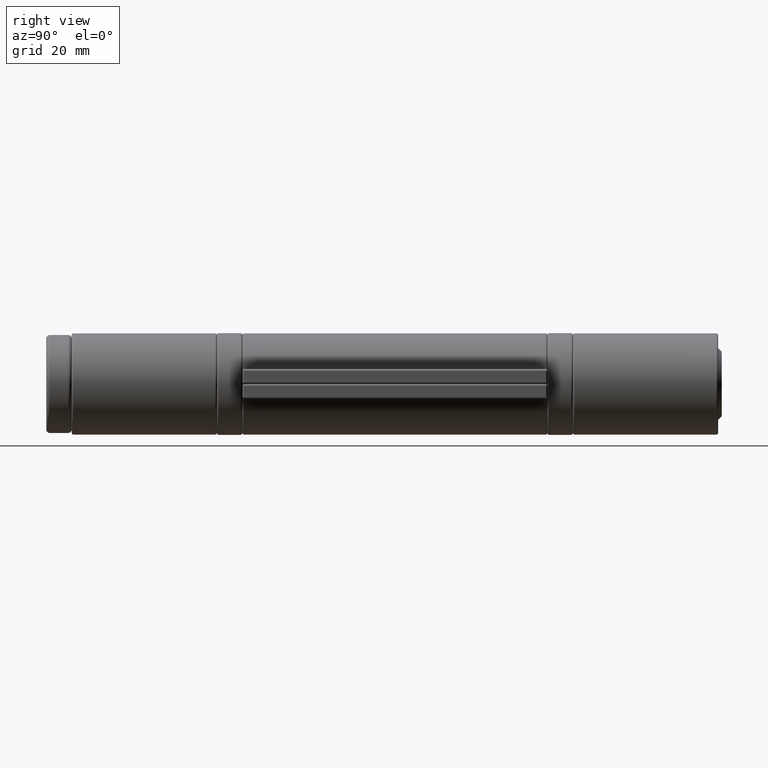
[diagram: clean part render]
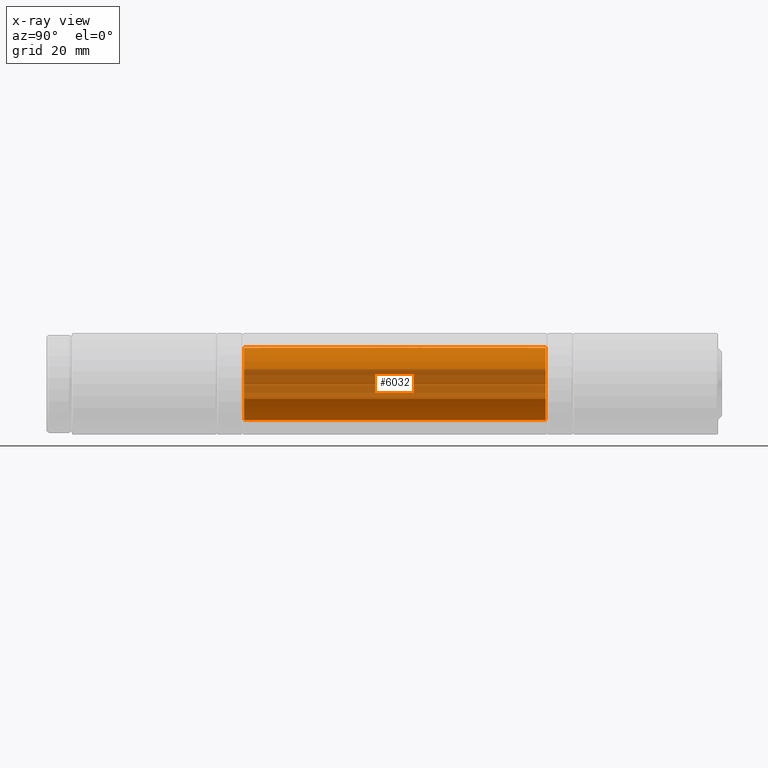
[diagram: x-ray — body ghosted, one internal face saturated and labeled with its STEP entity id]
A machine part, right view, then the same camera in x-ray: the body is ghosted and one INTERNAL B-rep face — a face not visible from any outside direction — is saturated and labeled: STEP entity #6032.
In plain terms, the highlighted cylindrical surface (edge-blend (fillet) strip) has radius 10 mm, axis along (-0, -1, 0).
Its self-contained STEP definition (entity closure, byte-faithful):
#1 = DIRECTION ( 'NONE',  ( -0.000000000000000000, -1.000000000000000000, -0.000000000000000000 ) ) ;
#2 = VERTEX_POINT ( 'NONE', #4110 ) ;
#24 = CARTESIAN_POINT ( 'NONE',  ( -10.00017879517053210, -3.676885605185409744, 0.01012054848694971497 ) ) ;
#31 = CARTESIAN_POINT ( 'NONE',  ( -10.00003449799938160, -1.739398774313377416, -0.03249417169102884057 ) ) ;
#33 = CARTESIAN_POINT ( 'NONE',  ( -9.981511848940638032, 1.806290064102565651, -0.6078003039301713706 ) ) ;
#47 = B_SPLINE_CURVE_WITH_KNOTS ( 'NONE', 3,
 ( #10233, #7881, #1157, #8690, #3654, #7801, #3702, #2854, #217, #9508 ),
 .UNSPECIFIED., .F., .F.,
 ( 4, 2, 2, 2, 4 ),
 ( 5.421010862427522170E-20, 0.0001362450622146915225, 0.0002724901244293829908, 0.0004087351866440744590, 0.0005449802488587658731 ),
 .UNSPECIFIED. ) ;
#51 = ORIENTED_EDGE ( 'NONE', *, *, #10140, .T. ) ;
#54 = CARTESIAN_POINT ( 'NONE',  ( -9.989233463957484460, 6.044227920735250947, -0.4690617702180850945 ) ) ;
#58 = CARTESIAN_POINT ( 'NONE',  ( -9.999258492655036079, -0.7208199786324733793, -0.1217768330434191720 ) ) ;
#83 = CARTESIAN_POINT ( 'NONE',  ( -9.980931036580034998, 5.864235613890856236, -0.6188318537603997305 ) ) ;
#87 = EDGE_LOOP ( 'NONE', ( #2828, #2936, #9191, #6871, #7051, #6047, #5689, #5937, #5407, #10073, #560, #10016, #6768, #9536 ) ) ;
#95 = CARTESIAN_POINT ( 'NONE',  ( -9.996692280932963470, 2.153449686164534249, 0.2571836704288030795 ) ) ;
#105 = CARTESIAN_POINT ( 'NONE',  ( -9.994254505921466247, -4.351594014373431740, -0.3394379128842923699 ) ) ;
#107 = CARTESIAN_POINT ( 'NONE',  ( -9.979388450444718117, 4.452123397435904906, -0.6417212441011114210 ) ) ;
#110 = VERTEX_POINT ( 'NONE', #5949 ) ;
#130 = CARTESIAN_POINT ( 'NONE',  ( -9.992932200142822907, -4.760061932425210252, 0.3759069610270937001 ) ) ;
#150 = CARTESIAN_POINT ( 'NONE',  ( -9.974397655384834138, -6.063368055555552694, 0.7151163627364953701 ) ) ;
#156 = ORIENTED_EDGE ( 'NONE', *, *, #521, .T. ) ;
#166 = CARTESIAN_POINT ( 'NONE',  ( -9.994179189343290304, -2.993342317527983187, 0.3416178935155609331 ) ) ;
#167 = CIRCLE ( 'NONE', #8977, 9.999999999999998224 ) ;
#194 = DIRECTION ( 'NONE',  ( 0.000000000000000000, 1.000000000000000000, -0.000000000000000000 ) ) ;
#200 = CARTESIAN_POINT ( 'NONE',  ( -9.993003653210198678, -0.2793946390732844343, 0.3740074866047469193 ) ) ;
#208 = CARTESIAN_POINT ( 'NONE',  ( 0.000000000000000000, -0.9582665598290573961, 0.000000000000000000 ) ) ;
#211 = EDGE_CURVE ( 'NONE', #8320, #5351, #3815, .T. ) ;
#214 = LINE ( 'NONE', #9169, #4523 ) ;
#215 = VERTEX_POINT ( 'NONE', #150 ) ;
#217 = CARTESIAN_POINT ( 'NONE',  ( -9.980524504992589030, -4.716766140242481420, -0.6238040750922312361 ) ) ;
#221 = VERTEX_POINT ( 'NONE', #5980 ) ;
#227 = CARTESIAN_POINT ( 'NONE',  ( -9.998377373414710334, -1.126622254614402019, 0.1835013057331851827 ) ) ;
#233 = EDGE_CURVE ( 'NONE', #7264, #8825, #9970, .T. ) ;
#252 = CARTESIAN_POINT ( 'NONE',  ( -9.992932200142822907, 1.054729233440165226, 0.3759069610270937001 ) ) ;
#259 = CARTESIAN_POINT ( 'NONE',  ( -9.998608322719395147, 4.129874465811965933, -0.1668280817079491052 ) ) ;
#262 = DIRECTION ( 'NONE',  ( 0.000000000000000000, 0.000000000000000000, 1.000000000000000000 ) ) ;
#267 = CARTESIAN_POINT ( 'NONE',  ( 0.000000000000000000, 1.806290064102565651, 0.000000000000000000 ) ) ;
#281 = CARTESIAN_POINT ( 'NONE',  ( -9.995761475050207068, 1.902848618010950732, 0.2930234998570792060 ) ) ;
#282 = VERTEX_POINT ( 'NONE', #2792 ) ;
#295 = CARTESIAN_POINT ( 'NONE',  ( -9.994543810149369989, -1.464417492200395188, 0.3309634259092265052 ) ) ;
#300 = CARTESIAN_POINT ( 'NONE',  ( -9.998608322719395147, 42.00000000000000000, -0.1668280817079491052 ) ) ;
#317 = VERTEX_POINT ( 'NONE', #3025 ) ;
#322 = CARTESIAN_POINT ( 'NONE',  ( -9.997256934699386477, 1.851281973388160695, 0.2408862776038018239 ) ) ;
#347 = VECTOR ( 'NONE', #9008, 1000.000000000000000 ) ;
#357 = CARTESIAN_POINT ( 'NONE',  ( -9.980598164372926462, 4.417943437150907648, -0.6229090178977401138 ) ) ;
#363 = EDGE_CURVE ( 'NONE', #9239, #5090, #10510, .T. ) ;
#365 = CARTESIAN_POINT ( 'NONE',  ( -9.998985555104400902, -1.640130458733972896, 0.1424354900067944796 ) ) ;
#366 = AXIS2_PLACEMENT_3D ( 'NONE', #6177, #1170, #7021 ) ;
#377 = EDGE_CURVE ( 'NONE', #9602, #8594, #7527, .T. ) ;
#381 = CARTESIAN_POINT ( 'NONE',  ( -9.997681416466239313, -2.262304910942161573, 0.2168876295397734189 ) ) ;
#404 = CARTESIAN_POINT ( 'NONE',  ( -9.994656025692643553, -2.147089509882476932, 0.3268806021862817324 ) ) ;
#412 = ORIENTED_EDGE ( 'NONE', *, *, #4703, .T. ) ;
#424 = VERTEX_POINT ( 'NONE', #3219 ) ;
#427 = CARTESIAN_POINT ( 'NONE',  ( -9.981511848940636256, 42.00000000000000000, -0.6078003039301713706 ) ) ;
#429 = CARTESIAN_POINT ( 'NONE',  ( -9.992932200142822907, -0.2130659054487126780, 0.3759069610270937001 ) ) ;
#432 = CARTESIAN_POINT ( 'NONE',  ( -9.982857985037227877, 4.349565554887828256, -0.5852746795979063554 ) ) ;
#442 = CARTESIAN_POINT ( 'NONE',  ( 0.000000000000000000, 0.6868990384615303313, 0.000000000000000000 ) ) ;
#452 = DIRECTION ( 'NONE',  ( 0.000000000000000000, 0.000000000000000000, 1.000000000000000000 ) ) ;
#468 = ORIENTED_EDGE ( 'NONE', *, *, #6806, .T. ) ;
#472 = VERTEX_POINT ( 'NONE', #9001 ) ;
#478 = CARTESIAN_POINT ( 'NONE',  ( -9.998193496045628237, 3.712794061217326469, 0.3990953706076176832 ) ) ;
#480 = ORIENTED_EDGE ( 'NONE', *, *, #10418, .T. ) ;
#491 = ORIENTED_EDGE ( 'NONE', *, *, #1823, .T. ) ;
#493 = DIRECTION ( 'NONE',  ( -0.000000000000000000, -1.000000000000000000, -0.000000000000000000 ) ) ;
#505 = VERTEX_POINT ( 'NONE', #33 ) ;
#519 = FACE_BOUND ( 'NONE', #5199, .T. ) ;
#521 = EDGE_CURVE ( 'NONE', #8725, #2, #1354, .T. ) ;
#531 = VECTOR ( 'NONE', #6582, 1000.000000000000000 ) ;
#536 = CARTESIAN_POINT ( 'NONE',  ( 0.000000000000000000, 2.535590277777784340, 0.000000000000000000 ) ) ;
#543 = CIRCLE ( 'NONE', #8718, 9.999999999999998224 ) ;
#547 = CARTESIAN_POINT ( 'NONE',  ( -9.998518223330519206, -1.651932352990175490, 0.1752422269814331857 ) ) ;
#554 = DIRECTION ( 'NONE',  ( 0.000000000000000000, 0.000000000000000000, -1.000000000000000000 ) ) ;
#560 = ORIENTED_EDGE ( 'NONE', *, *, #7154, .T. ) ;
#574 = ORIENTED_EDGE ( 'NONE', *, *, #7127, .T. ) ;
#587 = CARTESIAN_POINT ( 'NONE',  ( 0.000000000000000000, -5.418870192307689848, 0.000000000000000000 ) ) ;
#600 =( BOUNDED_CURVE ( )  B_SPLINE_CURVE ( 3, ( #10770, #3233, #3344, #3307 ),
 .UNSPECIFIED., .F., .F. ) 
 B_SPLINE_CURVE_WITH_KNOTS ( ( 4, 4 ),
 ( 4.640816252691254640, 4.776605230741187924 ),
 .UNSPECIFIED. ) 
 CURVE ( )  GEOMETRIC_REPRESENTATION_ITEM ( )  RATIONAL_B_SPLINE_CURVE ( ( 1.000000000000000000, 0.9984640362787817747, 0.9984640362787817747, 1.000000000000000000 ) ) 
 REPRESENTATION_ITEM ( '' )  );
#609 = VERTEX_POINT ( 'NONE', #9190 ) ;
#610 = CARTESIAN_POINT ( 'NONE',  ( -9.998276895379850870, -4.370766142494654893, 0.1856316872557260689 ) ) ;
#619 = CARTESIAN_POINT ( 'NONE',  ( -9.999995647783988417, 0.7156953793911673412, 0.03727209593709612107 ) ) ;
#636 = CARTESIAN_POINT ( 'NONE',  ( 0.000000000000000000, 1.687566773504276085, 0.000000000000000000 ) ) ;
#639 = CARTESIAN_POINT ( 'NONE',  ( -9.980464617203514521, -3.184858273237174853, -0.6247607740156414513 ) ) ;
#646 = CARTESIAN_POINT ( 'NONE',  ( -9.998876921884102487, -4.265558226495723027, -0.1498676116224789967 ) ) ;
#670 = ORIENTED_EDGE ( 'NONE', *, *, #10500, .T. ) ;
#676 = CARTESIAN_POINT ( 'NONE',  ( -9.980577309172113942, -3.251162019266608194, -0.6229605358252451319 ) ) ;
#675 = CIRCLE ( 'NONE', #4455, 9.999999999999998224 ) ;
#682 = CARTESIAN_POINT ( 'NONE',  ( -9.997979463874441919, -2.281183226495724803, -0.2010140292239747106 ) ) ;
#683 = CARTESIAN_POINT ( 'NONE',  ( -9.992932200142822907, 2.174120259081201212, 0.3759069610270937556 ) ) ;
#700 = CARTESIAN_POINT ( 'NONE',  ( -9.993511629923556683, 1.168957630243702583, 0.3602317416694748586 ) ) ;
#707 = CARTESIAN_POINT ( 'NONE',  ( -9.981511848940636256, 0.1780849358974411489, -0.6078003039301713706 ) ) ;
#718 = DIRECTION ( 'NONE',  ( 0.000000000000000000, 0.000000000000000000, -1.000000000000000000 ) ) ;
#722 = CARTESIAN_POINT ( 'NONE',  ( -9.981511848940636256, 42.00000000000000000, -0.6078003039301713706 ) ) ;
#734 = VERTEX_POINT ( 'NONE', #8544 ) ;
#737 = VERTEX_POINT ( 'NONE', #2629 ) ;
#741 = CARTESIAN_POINT ( 'NONE',  ( -9.979741922324324221, 5.631194691404474817, -0.6363003676269848308 ) ) ;
#742 = CARTESIAN_POINT ( 'NONE',  ( -9.995423281943226712, -4.421912560096150635, -0.3025118423917097510 ) ) ;
#751 = CARTESIAN_POINT ( 'NONE',  ( -9.971907697068454368, 42.00000000000000000, 0.7490373029074356426 ) ) ;
#753 = CARTESIAN_POINT ( 'NONE',  ( -9.989046062457259012, -2.815023298611194935, -0.4687809335950228751 ) ) ;
#808 = CARTESIAN_POINT ( 'NONE',  ( -9.999176590224481131, 1.809182142495431522, -0.1283258255637936551 ) ) ;
#821 = B_SPLINE_CURVE_WITH_KNOTS ( 'NONE', 3,
 ( #683, #9777, #10667, #7302, #9850, #6515, #9059, #3167, #4091, #9737, #1545, #4753 ),
 .UNSPECIFIED., .F., .F.,
 ( 4, 2, 2, 2, 2, 4 ),
 ( 4.370558682921689079E-19, 8.642851768473444227E-05, 0.0001728570353694684509, 0.0003457140707389364138, 0.0005185711061084042955, 0.0006914281414778723940 ),
 .UNSPECIFIED. ) ;
#832 = CARTESIAN_POINT ( 'NONE',  ( -9.971957107711620694, 5.669364835022810745, 0.7483795007246054620 ) ) ;
#842 = CARTESIAN_POINT ( 'NONE',  ( -9.994519493577504576, -4.442039340381404244, -0.3323743006721192605 ) ) ;
#855 = EDGE_CURVE ( 'NONE', #10065, #9692, #6445, .T. ) ;
#876 = CARTESIAN_POINT ( 'NONE',  ( -9.993488584095391758, -4.462965058061172385, -0.3617765578044325192 ) ) ;
#894 = CARTESIAN_POINT ( 'NONE',  ( -9.995118334130840054, -1.083962266419152609, 0.3134604813038311955 ) ) ;
#897 = LINE ( 'NONE', #6616, #2986 ) ;
#900 = AXIS2_PLACEMENT_3D ( 'NONE', #903, #9224, #2543 ) ;
#903 = CARTESIAN_POINT ( 'NONE',  ( 0.000000000000000000, -4.045072115384622080, 0.000000000000000000 ) ) ;
#915 = CARTESIAN_POINT ( 'NONE',  ( -9.998447609803342573, -0.7190223255688993342, -0.1883595075851558498 ) ) ;
#932 = ORIENTED_EDGE ( 'NONE', *, *, #377, .T. ) ;
#946 = CARTESIAN_POINT ( 'NONE',  ( -9.998564585233726376, 2.358106918021161569, 0.1712238246765657168 ) ) ;
#950 = CARTESIAN_POINT ( 'NONE',  ( -9.994864473019212880, -4.386751745463262964, -0.3209756872617426926 ) ) ;
#961 = CARTESIAN_POINT ( 'NONE',  ( 0.000000000000000000, -1.738448183760683774, 0.000000000000000000 ) ) ;
#971 = CARTESIAN_POINT ( 'NONE',  ( -9.997866492956648088, 1.976116121605438813, 0.2078629987359535969 ) ) ;
#975 = ORIENTED_EDGE ( 'NONE', *, *, #2175, .T. ) ;
#982 = VERTEX_POINT ( 'NONE', #3880 ) ;
#991 = ORIENTED_EDGE ( 'NONE', *, *, #3377, .T. ) ;
#996 = CARTESIAN_POINT ( 'NONE',  ( -9.999999929601976589, 1.824575570913465450, 0.001186575076238933178 ) ) ;
#1003 = CARTESIAN_POINT ( 'NONE',  ( -9.997157956499977516, -5.122107841556651664, -0.2423294997685455088 ) ) ;
#1012 = VERTEX_POINT ( 'NONE', #10549 ) ;
#1013 = DIRECTION ( 'NONE',  ( -0.000000000000000000, -1.000000000000000000, -0.000000000000000000 ) ) ;
#1014 = VERTEX_POINT ( 'NONE', #5561 ) ;
#1019 = CARTESIAN_POINT ( 'NONE',  ( -9.981202975655966370, -0.3490478602623065529, -0.6133709801601394673 ) ) ;
#1041 = DIRECTION ( 'NONE',  ( 0.000000000000000000, 1.000000000000000000, -0.000000000000000000 ) ) ;
#1051 = DIRECTION ( 'NONE',  ( -0.000000000000000000, -1.000000000000000000, -0.000000000000000000 ) ) ;
#1075 = CARTESIAN_POINT ( 'NONE',  ( -9.998876921884102487, -5.130542200854697477, -0.1498676116224789967 ) ) ;
#1084 = VERTEX_POINT ( 'NONE', #7108 ) ;
#1085 = CARTESIAN_POINT ( 'NONE',  ( -9.992976197993835186, 1.018515935852698284, 0.3747373430426035879 ) ) ;
#1095 = DIRECTION ( 'NONE',  ( 0.000000000000000000, 0.000000000000000000, -1.000000000000000000 ) ) ;
#1097 = B_SPLINE_CURVE_WITH_KNOTS ( 'NONE', 3,
 ( #8114, #8893, #2220, #7271, #8149, #10466, #5457, #4690, #547, #1408 ),
 .UNSPECIFIED., .F., .F.,
 ( 4, 2, 2, 2, 4 ),
 ( 2.235140038340936256E-19, 0.0001032803669226507921, 0.0002065607338453013674, 0.0003098411007679519697, 0.0004131214676906024095 ),
 .UNSPECIFIED. ) ;
#1102 = CARTESIAN_POINT ( 'NONE',  ( -10.00007509016583995, -1.078034503358187290, -0.004963770753725411239 ) ) ;
#1103 = DIRECTION ( 'NONE',  ( 0.000000000000000000, 1.000000000000000000, -0.000000000000000000 ) ) ;
#1106 = VERTEX_POINT ( 'NONE', #1285 ) ;
#1108 = CARTESIAN_POINT ( 'NONE',  ( -9.994672497035532288, -5.088400649077654769, -0.3292604906003706589 ) ) ;
#1124 = DIRECTION ( 'NONE',  ( 0.000000000000000000, 0.000000000000000000, -1.000000000000000000 ) ) ;
#1137 = EDGE_LOOP ( 'NONE', ( #9711, #3779, #9730, #9127, #4231, #5010 ) ) ;
#1142 = CARTESIAN_POINT ( 'NONE',  ( -9.971907697068454368, -2.671274038461533884, 0.7490373029074356426 ) ) ;
#1149 = VECTOR ( 'NONE', #5059, 1000.000000000000000 ) ;
#1155 = CARTESIAN_POINT ( 'NONE',  ( -9.999776160817633652, 2.402821597889961414, 0.06690839665743548992 ) ) ;
#1157 = CARTESIAN_POINT ( 'NONE',  ( -9.990535035812227349, -4.363314185664604494, -0.4363089613609142936 ) ) ;
#1165 = B_SPLINE_CURVE_WITH_KNOTS ( 'NONE', 3,
 ( #3797, #10468, #3831, #7191, #4692, #6306, #10528, #9708, #4758, #10674 ),
 .UNSPECIFIED., .F., .F.,
 ( 4, 2, 2, 2, 4 ),
 ( 0.000000000000000000, 0.0002330308274612723088, 0.0004660616549225446176, 0.0006990924823838169265, 0.0009321233098450892353 ),
 .UNSPECIFIED. ) ;
#1169 = CARTESIAN_POINT ( 'NONE',  ( -9.987188096024654627, -4.777817424545936831, -0.5060374834173508862 ) ) ;
#1170 = DIRECTION ( 'NONE',  ( 0.000000000000000000, 1.000000000000000000, -0.000000000000000000 ) ) ;
#1172 = CARTESIAN_POINT ( 'NONE',  ( -9.997979463874441919, -2.281183226495724803, -0.2010140292239747106 ) ) ;
#1180 = CARTESIAN_POINT ( 'NONE',  ( -9.998378670749076491, 0.1780849358974411489, 0.1800665330089312455 ) ) ;
#1187 = VERTEX_POINT ( 'NONE', #9967 ) ;
#1189 = CARTESIAN_POINT ( 'NONE',  ( -9.993151885451055705, -1.360565019761942995, 0.3701935223844826095 ) ) ;
#1198 = VECTOR ( 'NONE', #9462, 1000.000000000000000 ) ;
#1218 = CARTESIAN_POINT ( 'NONE',  ( -9.993555794442768203, 42.00000000000000000, 0.3589464909416235638 ) ) ;
#1222 = ORIENTED_EDGE ( 'NONE', *, *, #2444, .T. ) ;
#1227 = CARTESIAN_POINT ( 'NONE',  ( -9.993989924528241531, -4.938561712262051984, 0.3469887270777736177 ) ) ;
#1237 = LINE ( 'NONE', #3985, #5274 ) ;
#1240 = CARTESIAN_POINT ( 'NONE',  ( -9.998276895379850870, -4.370766142494654893, 0.1856316872557260689 ) ) ;
#1255 = DIRECTION ( 'NONE',  ( 0.000000000000000000, 0.000000000000000000, -1.000000000000000000 ) ) ;
#1263 = CARTESIAN_POINT ( 'NONE',  ( -9.981511848940636256, 42.00000000000000000, -0.6078003039301713706 ) ) ;
#1265 = ORIENTED_EDGE ( 'NONE', *, *, #2037, .T. ) ;
#1281 = DIRECTION ( 'NONE',  ( 0.000000000000000000, 1.000000000000000000, -0.000000000000000000 ) ) ;
#1285 = CARTESIAN_POINT ( 'NONE',  ( -9.998828751488698430, 2.416866987179487669, -0.1530476997635046299 ) ) ;
#1290 = CARTESIAN_POINT ( 'NONE',  ( -9.998982140267951735, -2.199838539395620352, 0.1498133742472343710 ) ) ;
#1301 = B_SPLINE_CURVE_WITH_KNOTS ( 'NONE', 3,
 ( #58, #2691, #5993, #5895, #6850, #1838, #7718, #9251, #200, #2656 ),
 .UNSPECIFIED., .F., .F.,
 ( 4, 2, 2, 2, 4 ),
 ( 0.000000000000000000, 0.0001964622177439625671, 0.0003929244354879251342, 0.0005893866532318877555, 0.0007858488709758502683 ),
 .UNSPECIFIED. ) ;
#1302 = LINE ( 'NONE', #3006, #9407 ) ;
#1308 = DIRECTION ( 'NONE',  ( 0.000000000000000000, 1.000000000000000000, -0.000000000000000000 ) ) ;
#1323 = CARTESIAN_POINT ( 'NONE',  ( -10.00571990627973484, 4.747715906813684050, 0.1914100947980658107 ) ) ;
#1324 = AXIS2_PLACEMENT_3D ( 'NONE', #9065, #4099, #3937 ) ;
#1351 = ORIENTED_EDGE ( 'NONE', *, *, #1824, .T. ) ;
#1354 = B_SPLINE_CURVE_WITH_KNOTS ( 'NONE', 3,
 ( #9098, #5827, #3254, #2546, #4100, #5862, #808, #6641, #9066, #3295 ),
 .UNSPECIFIED., .F., .F.,
 ( 4, 3, 3, 4 ),
 ( 0.000000000000000000, 6.532046482510732389E-05, 0.0001305005275378708367, 0.0002603763871816536430 ),
 .UNSPECIFIED. ) ;
#1359 = DIRECTION ( 'NONE',  ( -0.000000000000000000, -1.000000000000000000, -0.000000000000000000 ) ) ;
#1364 = VERTEX_POINT ( 'NONE', #9227 ) ;
#1366 = DIRECTION ( 'NONE',  ( 0.000000000000000000, 0.000000000000000000, -1.000000000000000000 ) ) ;
#1369 = CARTESIAN_POINT ( 'NONE',  ( -9.996692280932963470, -1.968474559294870474, 0.2571836704288030795 ) ) ;
#1375 = DIRECTION ( 'NONE',  ( 0.000000000000000000, 1.000000000000000000, -0.000000000000000000 ) ) ;
#1377 = CARTESIAN_POINT ( 'NONE',  ( -9.996710175564507139, 0.9965940545288543007, 0.2564881086744179028 ) ) ;
#1382 = ORIENTED_EDGE ( 'NONE', *, *, #9340, .T. ) ;
#1393 = DIRECTION ( 'NONE',  ( 0.000000000000000000, 1.000000000000000000, -0.000000000000000000 ) ) ;
#1395 = CARTESIAN_POINT ( 'NONE',  ( -4.147058823529411242, -41.49999999999997158, 9.099555105288764878 ) ) ;
#1401 = CARTESIAN_POINT ( 'NONE',  ( -9.998270890665420296, -2.161991717423770165, 0.1878994943978961885 ) ) ;
#1403 = EDGE_CURVE ( 'NONE', #1837, #5490, #5920, .T. ) ;
#1408 = CARTESIAN_POINT ( 'NONE',  ( -9.998985555104400902, -1.640130458733972896, 0.1424354900067944796 ) ) ;
#1416 = CARTESIAN_POINT ( 'NONE',  ( -9.999148547429120626, 0.7722507189222643786, 0.1341379768189265298 ) ) ;
#1423 = CARTESIAN_POINT ( 'NONE',  ( -9.985946850571782107, 5.426026439518962796, -0.5317321068464671008 ) ) ;
#1442 = AXIS2_PLACEMENT_3D ( 'NONE', #6984, #3625, #262 ) ;
#1465 = LINE ( 'NONE', #9592, #1198 ) ;
#1478 = EDGE_LOOP ( 'NONE', ( #3444, #51, #7430, #7567 ) ) ;
#1480 = CARTESIAN_POINT ( 'NONE',  ( -9.996664645616911926, 0.6868990384615327738, -0.2582556157624362747 ) ) ;
#1490 = EDGE_CURVE ( 'NONE', #9116, #2226, #2803, .T. ) ;
#1500 = AXIS2_PLACEMENT_3D ( 'NONE', #6646, #7391, #5831 ) ;
#1520 = CARTESIAN_POINT ( 'NONE',  ( -9.992932200142822907, -1.285550631009614087, 0.3759069610270937001 ) ) ;
#1521 = DIRECTION ( 'NONE',  ( -0.000000000000000000, -1.000000000000000000, -0.000000000000000000 ) ) ;
#1532 = CIRCLE ( 'NONE', #2107, 9.999999999999998224 ) ;
#1545 = CARTESIAN_POINT ( 'NONE',  ( -10.00001114089158705, 2.535419353919514229, -0.05607124368817202609 ) ) ;
#1551 = EDGE_CURVE ( 'NONE', #6724, #7669, #4729, .T. ) ;
#1558 = FACE_BOUND ( 'NONE', #6436, .T. ) ;
#1559 = VERTEX_POINT ( 'NONE', #8440 ) ;
#1562 = AXIS2_PLACEMENT_3D ( 'NONE', #7031, #1281, #7104 ) ;
#1587 = LINE ( 'NONE', #2304, #2655 ) ;
#1594 = DIRECTION ( 'NONE',  ( -0.000000000000000000, -1.000000000000000000, -0.000000000000000000 ) ) ;
#1604 = CARTESIAN_POINT ( 'NONE',  ( -9.999485163148301936, 1.397204065064599376, 0.1165723696540568316 ) ) ;
#1615 = VERTEX_POINT ( 'NONE', #6786 ) ;
#1630 = CARTESIAN_POINT ( 'NONE',  ( -9.996714160736781096, 2.182135839134875965, 0.2563332056012692650 ) ) ;
#1640 = CARTESIAN_POINT ( 'NONE',  ( -9.992932200142822907, 1.054729233440165226, 0.3759069610270937001 ) ) ;
#1647 = B_SPLINE_CURVE_WITH_KNOTS ( 'NONE', 3,
 ( #6679, #8297, #8201, #1694, #6176, #4789, #10827, #5939, #4926, #3465 ),
 .UNSPECIFIED., .F., .F.,
 ( 4, 2, 2, 2, 4 ),
 ( 0.000000000000000000, 8.512567794491814911E-05, 0.0001702513558898362982, 0.0002553770338347545422, 0.0003405027117796727591 ),
 .UNSPECIFIED. ) ;
#1655 = CARTESIAN_POINT ( 'NONE',  ( -9.999645968033981092, -0.9582665598290585063, -0.08414579004128237838 ) ) ;
#1694 = CARTESIAN_POINT ( 'NONE',  ( -9.998564585233726376, 1.238715892380125361, 0.1712238246765658001 ) ) ;
#1698 = EDGE_CURVE ( 'NONE', #3278, #472, #9813, .T. ) ;
#1701 = ORIENTED_EDGE ( 'NONE', *, *, #2631, .T. ) ;
#1711 = CARTESIAN_POINT ( 'NONE',  ( -9.997948511011440331, -1.810994298281929815, 0.2037470426886727470 ) ) ;
#1713 = VERTEX_POINT ( 'NONE', #3787 ) ;
#1716 = VERTEX_POINT ( 'NONE', #1395 ) ;
#1727 = VECTOR ( 'NONE', #1521, 1000.000000000000000 ) ;
#1733 = DIRECTION ( 'NONE',  ( 0.000000000000000000, 1.000000000000000000, 0.000000000000000000 ) ) ;
#1738 = CARTESIAN_POINT ( 'NONE',  ( -9.971907697068454368, 42.00000000000000000, 0.7490373029074356426 ) ) ;
#1786 = CARTESIAN_POINT ( 'NONE',  ( -9.993555794442768203, -2.281183226495724803, 0.3589464909416235638 ) ) ;
#1787 = CARTESIAN_POINT ( 'NONE',  ( -9.980577309172112166, -0.2830797543093407365, -0.6229605358252455760 ) ) ;
#1789 = B_SPLINE_CURVE_WITH_KNOTS ( 'NONE', 3,
 ( #7745, #7014, #1975, #7708, #4363, #4391, #5286, #5214, #3593, #6086 ),
 .UNSPECIFIED., .F., .F.,
 ( 4, 2, 2, 2, 4 ),
 ( 0.000000000000000000, 0.0001922688592608313746, 0.0003845377185216627492, 0.0005768065777824941780, 0.0007690754370433254983 ),
 .UNSPECIFIED. ) ;
#1795 = CARTESIAN_POINT ( 'NONE',  ( -9.992932200142822907, 2.174120259081201212, 0.3759069610270937556 ) ) ;
#1796 = CARTESIAN_POINT ( 'NONE',  ( -9.979388450444707459, 5.708523220486114269, -0.6417212441011114210 ) ) ;
#1797 = CARTESIAN_POINT ( 'NONE',  ( -9.992975023162939507, -3.142722285076598343, 0.3747685741894853373 ) ) ;
#1801 = VERTEX_POINT ( 'NONE', #3958 ) ;
#1807 = CARTESIAN_POINT ( 'NONE',  ( 0.000000000000000000, -2.789997329059823450, 0.000000000000000000 ) ) ;
#1817 = CARTESIAN_POINT ( 'NONE',  ( -9.999776160817633652, 2.402821597889961414, 0.06690839665743548992 ) ) ;
#1823 = EDGE_CURVE ( 'NONE', #734, #1106, #7781, .T. ) ;
#1824 = EDGE_CURVE ( 'NONE', #10796, #7260, #6840, .T. ) ;
#1833 = CARTESIAN_POINT ( 'NONE',  ( -9.999995647783979535, 1.835086405032203549, 0.03727209593709569085 ) ) ;
#1835 = VERTEX_POINT ( 'NONE', #8250 ) ;
#1837 = VERTEX_POINT ( 'NONE', #5740 ) ;
#1838 = CARTESIAN_POINT ( 'NONE',  ( -9.996255424074528051, -0.5228694495008567866, 0.2774653814935654772 ) ) ;
#1843 = CARTESIAN_POINT ( 'NONE',  ( -9.998382411655658331, -3.585576318892964132, 0.1856305243261432147 ) ) ;
#1845 = EDGE_CURVE ( 'NONE', #7669, #10796, #4112, .T. ) ;
#1871 = CARTESIAN_POINT ( 'NONE',  ( -9.998725568628378468, 1.917447548726943118, 0.1613333210649580685 ) ) ;
#1879 = CARTESIAN_POINT ( 'NONE',  ( -9.998177085584412538, -2.281183226495723915, 0.1909318341574354760 ) ) ;
#1880 = CARTESIAN_POINT ( 'NONE',  ( -9.995055158906376747, -3.434969940748386907, 0.3153887830029404316 ) ) ;
#1890 = EDGE_CURVE ( 'NONE', #8594, #2692, #4254, .T. ) ;
#1902 = DIRECTION ( 'NONE',  ( -0.000000000000000000, -1.000000000000000000, -0.000000000000000000 ) ) ;
#1908 = AXIS2_PLACEMENT_3D ( 'NONE', #536, #10412, #1366 ) ;
#1911 = EDGE_CURVE ( 'NONE', #424, #8725, #9872, .T. ) ;
#1922 = CARTESIAN_POINT ( 'NONE',  ( -9.981754678986124674, 4.383757398521719750, -0.6040934462491174273 ) ) ;
#1956 = CARTESIAN_POINT ( 'NONE',  ( -9.993003653210193349, -3.247476904030550671, 0.3740074866047469748 ) ) ;
#1966 = VERTEX_POINT ( 'NONE', #1795 ) ;
#1973 = CARTESIAN_POINT ( 'NONE',  ( -9.999932664230296808, -5.944644764957264016, 0.03669755931769191210 ) ) ;
#1975 = CARTESIAN_POINT ( 'NONE',  ( -9.981052885043476763, -4.891699352365178832, -0.6157359138904143769 ) ) ;
#1982 = CARTESIAN_POINT ( 'NONE',  ( -9.997447190170246856, -1.439008063603716359, 0.2264116227362135414 ) ) ;
#2000 = DIRECTION ( 'NONE',  ( 0.000000000000000000, 1.000000000000000000, 0.000000000000000000 ) ) ;
#2020 = CARTESIAN_POINT ( 'NONE',  ( -9.998373688523795266, -1.508365065657574444, 0.1826848577385426498 ) ) ;
#2022 = CARTESIAN_POINT ( 'NONE',  ( 0.000000000000000000, 0.1780849358974379015, 0.000000000000000000 ) ) ;
#2025 = ORIENTED_EDGE ( 'NONE', *, *, #8094, .T. ) ;
#2037 = EDGE_CURVE ( 'NONE', #2988, #5468, #9433, .T. ) ;
#2051 = VERTEX_POINT ( 'NONE', #1169 ) ;
#2065 = CARTESIAN_POINT ( 'NONE',  ( -9.981511848940638032, 0.2968082264957344618, -0.6078003039301713706 ) ) ;
#2070 = VERTEX_POINT ( 'NONE', #2318 ) ;
#2071 = DIRECTION ( 'NONE',  ( 0.000000000000000000, 0.000000000000000000, 1.000000000000000000 ) ) ;
#2107 = AXIS2_PLACEMENT_3D ( 'NONE', #3070, #1308, #452 ) ;
#2117 = CARTESIAN_POINT ( 'NONE',  ( -9.992986890017927948, -1.322940830505644927, 0.3744531113499050545 ) ) ;
#2124 = EDGE_CURVE ( 'NONE', #9646, #4177, #8284, .T. ) ;
#2126 = EDGE_LOOP ( 'NONE', ( #5639, #4277, #1222, #4315, #3112, #3009, #10568, #1351, #7322 ) ) ;
#2130 = CARTESIAN_POINT ( 'NONE',  ( -9.979388450444707459, 5.708523220486114269, -0.6417212441011114210 ) ) ;
#2137 = CARTESIAN_POINT ( 'NONE',  ( -9.971907697068454368, 5.708523220486114269, 0.7490373029074356426 ) ) ;
#2175 = EDGE_CURVE ( 'NONE', #9335, #9116, #7099, .T. ) ;
#2185 = CARTESIAN_POINT ( 'NONE',  ( -9.981511848940638032, -3.926348824786325853, -0.6078003039301713706 ) ) ;
#2220 = CARTESIAN_POINT ( 'NONE',  ( -9.993124343195834314, -1.878718536228435987, 0.3709178320658576555 ) ) ;
#2224 = B_SPLINE_CURVE_WITH_KNOTS ( 'NONE', 3,
 ( #8500, #1797, #3458, #9286, #166, #2689, #4370, #10174, #9385, #4398 ),
 .UNSPECIFIED., .F., .F.,
 ( 4, 2, 2, 2, 4 ),
 ( 0.000000000000000000, 0.0001142790428848124899, 0.0002285580857696249799, 0.0003428371286544374969, 0.0004571161715392499597 ),
 .UNSPECIFIED. ) ;
#2226 = VERTEX_POINT ( 'NONE', #8404 ) ;
#2227 = VERTEX_POINT ( 'NONE', #6636 ) ;
#2235 = LINE ( 'NONE', #9972, #9929 ) ;
#2236 = ORIENTED_EDGE ( 'NONE', *, *, #7737, .T. ) ;
#2247 = CARTESIAN_POINT ( 'NONE',  ( -9.999667079677090342, -2.279198568585059981, -0.09658762924981371956 ) ) ;
#2256 = CARTESIAN_POINT ( 'NONE',  ( -9.999788865731032317, 0.7303475335329042695, 0.07202299063934755607 ) ) ;
#2282 = CARTESIAN_POINT ( 'NONE',  ( 0.000000000000000000, 4.129874465811964157, 0.000000000000000000 ) ) ;
#2292 = VECTOR ( 'NONE', #5602, 1000.000000000000000 ) ;
#2301 = VERTEX_POINT ( 'NONE', #1075 ) ;
#2304 = CARTESIAN_POINT ( 'NONE',  ( -9.981511848940636256, 42.00000000000000000, -0.6078003039301713706 ) ) ;
#2314 = CARTESIAN_POINT ( 'NONE',  ( -9.999174494116715550, -4.335348621225821653, 0.1372862735777757026 ) ) ;
#2318 = CARTESIAN_POINT ( 'NONE',  ( -9.995423281943226712, -4.421912560096150635, -0.3025118423917097510 ) ) ;
#2346 = CARTESIAN_POINT ( 'NONE',  ( 0.000000000000000000, 2.416866987179487669, 0.000000000000000000 ) ) ;
#2348 = CARTESIAN_POINT ( 'NONE',  ( -9.981511848940638032, -2.399906517094013481, -0.6078003039301713706 ) ) ;
#2359 = CARTESIAN_POINT ( 'NONE',  ( 0.000000000000000000, -1.076989850427346962, 0.000000000000000000 ) ) ;
#2371 = CARTESIAN_POINT ( 'NONE',  ( -9.991440062010697787, -4.511307316998022010, -0.4145139870612915556 ) ) ;
#2381 = EDGE_CURVE ( 'NONE', #2301, #2051, #10738, .T. ) ;
#2383 = CARTESIAN_POINT ( 'NONE',  ( -9.999258492655036079, -3.688902243589739172, -0.1217768330434191720 ) ) ;
#2395 = CARTESIAN_POINT ( 'NONE',  ( -9.971907697068454368, 5.708523220486114269, 0.7490373029074356426 ) ) ;
#2407 = VERTEX_POINT ( 'NONE', #1240 ) ;
#2410 = B_SPLINE_CURVE_WITH_KNOTS ( 'NONE', 3,
 ( #10225, #6118, #6160, #7878, #2849, #6972, #1085, #252 ),
 .UNSPECIFIED., .F., .F.,
 ( 4, 2, 2, 4 ),
 ( 1.745068781624090839E-18, 0.0002158472176080097589, 0.0003237708264120138795, 0.0004316944352160180542 ),
 .UNSPECIFIED. ) ;
#2414 = VERTEX_POINT ( 'NONE', #1142 ) ;
#2417 = DIRECTION ( 'NONE',  ( 0.000000000000000000, 1.000000000000000000, 0.000000000000000000 ) ) ;
#2421 = CARTESIAN_POINT ( 'NONE',  ( -9.996321117299929782, -1.044058724557969331, 0.2752014675368763541 ) ) ;
#2424 = DIRECTION ( 'NONE',  ( -0.000000000000000000, -1.000000000000000000, -0.000000000000000000 ) ) ;
#2442 = CARTESIAN_POINT ( 'NONE',  ( -9.987258355408373589, -4.705739112195477247, -0.5046508397324102058 ) ) ;
#2444 = EDGE_CURVE ( 'NONE', #10146, #2414, #1465, .T. ) ;
#2446 = CARTESIAN_POINT ( 'NONE',  ( 0.000000000000000000, 4.333400106837616228, 0.000000000000000000 ) ) ;
#2466 = EDGE_CURVE ( 'NONE', #10577, #221, #4597, .T. ) ;
#2471 = CARTESIAN_POINT ( 'NONE',  ( -9.999590826414696210, 2.395452225632565657, 0.09460749926454499470 ) ) ;
#2474 = FACE_BOUND ( 'NONE', #3151, .T. ) ;
#2486 = CIRCLE ( 'NONE', #6341, 9.999999999999998224 ) ;
#2489 = ORIENTED_EDGE ( 'NONE', *, *, #8244, .T. ) ;
#2530 = CARTESIAN_POINT ( 'NONE',  ( -9.992932200142822907, 1.054729233440165226, 0.3759069610270937001 ) ) ;
#2543 = DIRECTION ( 'NONE',  ( 0.000000000000000000, 0.000000000000000000, 1.000000000000000000 ) ) ;
#2545 = CARTESIAN_POINT ( 'NONE',  ( -9.996732413026483854, -1.926005804854463932, 0.2556237417255416977 ) ) ;
#2546 = CARTESIAN_POINT ( 'NONE',  ( -9.999799829797524353, 1.814002167990558911, -0.06327214222147192757 ) ) ;
#2549 = EDGE_CURVE ( 'NONE', #9483, #2988, #6829, .T. ) ;
#2555 = DIRECTION ( 'NONE',  ( -0.000000000000000000, -1.000000000000000000, -0.000000000000000000 ) ) ;
#2584 = VECTOR ( 'NONE', #8215, 1000.000000000000000 ) ;
#2596 = CARTESIAN_POINT ( 'NONE',  ( -9.999955619609679047, 1.297069181405978711, -0.07942776699339157420 ) ) ;
#2622 = FACE_BOUND ( 'NONE', #1137, .T. ) ;
#2629 = CARTESIAN_POINT ( 'NONE',  ( -9.981511848940638032, 0.5681757478632407654, -0.6078003039301713706 ) ) ;
#2631 = EDGE_CURVE ( 'NONE', #9891, #6137, #167, .T. ) ;
#2648 = B_SPLINE_CURVE_WITH_KNOTS ( 'NONE', 3,
 ( #10569, #8228, #4762, #6383, #8082, #5575 ),
 .UNSPECIFIED., .F., .F.,
 ( 4, 2, 4 ),
 ( 8.131516293641283255E-20, 0.0001745273666660933528, 0.0003490547333321866513 ),
 .UNSPECIFIED. ) ;
#2655 = VECTOR ( 'NONE', #493, 1000.000000000000000 ) ;
#2656 = CARTESIAN_POINT ( 'NONE',  ( -9.992932200142822907, -0.2130659054487126780, 0.3759069610270937001 ) ) ;
#2660 = CARTESIAN_POINT ( 'NONE',  ( 0.000000000000000000, 0.1780849358974379015, 0.000000000000000000 ) ) ;
#2679 = CARTESIAN_POINT ( 'NONE',  ( -9.981511848940636256, 42.00000000000000000, -0.6078003039301713706 ) ) ;
#2686 = VERTEX_POINT ( 'NONE', #10582 ) ;
#2688 = CARTESIAN_POINT ( 'NONE',  ( -9.999788865731026988, 1.849738559173939700, 0.07202299063934716750 ) ) ;
#2689 = CARTESIAN_POINT ( 'NONE',  ( -9.995338207946682374, -2.926248015143597669, 0.3058342077559859096 ) ) ;
#2690 = EDGE_CURVE ( 'NONE', #8750, #8482, #1587, .T. ) ;
#2691 = CARTESIAN_POINT ( 'NONE',  ( -10.00006363542293819, -0.7189569842943526190, -0.05566548445150374530 ) ) ;
#2692 = VERTEX_POINT ( 'NONE', #6464 ) ;
#2696 = CARTESIAN_POINT ( 'NONE',  ( -9.990530421396117688, -4.997139234714650158, -0.4363878531631285584 ) ) ;
#2707 = LINE ( 'NONE', #6604, #6878 ) ;
#2710 = CARTESIAN_POINT ( 'NONE',  ( -9.981511848940636256, 3.858506944444444198, -0.6078003039301713706 ) ) ;
#2730 = DIRECTION ( 'NONE',  ( -0.000000000000000000, -1.000000000000000000, -0.000000000000000000 ) ) ;
#2759 = CARTESIAN_POINT ( 'NONE',  ( -9.996692280932963470, 2.153449686164534249, 0.2571836704288030795 ) ) ;
#2792 = CARTESIAN_POINT ( 'NONE',  ( -9.981511848940638032, 1.416199252136749021, -0.6078003039301713706 ) ) ;
#2797 = CARTESIAN_POINT ( 'NONE',  ( -9.981511848940636256, -1.738448183760682220, -0.6078003039301713706 ) ) ;
#2798 = VERTEX_POINT ( 'NONE', #3867 ) ;
#2803 = CIRCLE ( 'NONE', #5183, 9.999999999999998224 ) ;
#2812 = EDGE_CURVE ( 'NONE', #9221, #1615, #7905, .T. ) ;
#2816 = CARTESIAN_POINT ( 'NONE',  ( -10.00025915447117342, 2.418528002448601111, -0.005277288004500263648 ) ) ;
#2821 = CARTESIAN_POINT ( 'NONE',  ( -9.974397655384832362, 42.00000000000000000, 0.7151163627364953701 ) ) ;
#2828 = ORIENTED_EDGE ( 'NONE', *, *, #7227, .T. ) ;
#2839 = DIRECTION ( 'NONE',  ( 0.000000000000000000, 1.000000000000000000, 0.000000000000000000 ) ) ;
#2849 = CARTESIAN_POINT ( 'NONE',  ( -9.993680067758878849, 0.9128260596272039784, 0.3555655295114123482 ) ) ;
#2854 = CARTESIAN_POINT ( 'NONE',  ( -9.980753148329201352, -4.670530091016345864, -0.6202327700011822653 ) ) ;
#2892 = EDGE_CURVE ( 'NONE', #1084, #2798, #47, .T. ) ;
#2898 = ORIENTED_EDGE ( 'NONE', *, *, #6597, .T. ) ;
#2906 = CIRCLE ( 'NONE', #5973, 9.999999999999998224 ) ;
#2936 = ORIENTED_EDGE ( 'NONE', *, *, #3599, .T. ) ;
#2971 = CARTESIAN_POINT ( 'NONE',  ( -9.980575142559068524, -0.1410246797501698290, -0.6229951471608227154 ) ) ;
#2972 = CARTESIAN_POINT ( 'NONE',  ( -9.994068606897963392, -0.02636530686506109028, 0.3447748763421021323 ) ) ;
#2981 = CARTESIAN_POINT ( 'NONE',  ( -10.00013124963657418, -2.264833911987724768, 0.006772336665739625214 ) ) ;
#2986 = VECTOR ( 'NONE', #1, 1000.000000000000000 ) ;
#2988 = VERTEX_POINT ( 'NONE', #6305 ) ;
#2994 = B_SPLINE_CURVE_WITH_KNOTS ( 'NONE', 3,
 ( #8358, #7526, #4881, #10746, #10778, #894, #2421, #5810, #6671, #4191, #6629, #1655 ),
 .UNSPECIFIED., .F., .F.,
 ( 4, 2, 2, 2, 2, 4 ),
 ( 2.235140038340936256E-19, 7.983934890331110146E-05, 0.0001596786978066219861, 0.0003193573956132432132, 0.0004790360934198642506, 0.0006387147912264853422 ),
 .UNSPECIFIED. ) ;
#2998 = ORIENTED_EDGE ( 'NONE', *, *, #3365, .T. ) ;
#3006 = CARTESIAN_POINT ( 'NONE',  ( -4.147058823529411242, 42.00000000000000000, 9.099555105288764878 ) ) ;
#3009 = ORIENTED_EDGE ( 'NONE', *, *, #1551, .T. ) ;
#3010 = LINE ( 'NONE', #1263, #9647 ) ;
#3025 = CARTESIAN_POINT ( 'NONE',  ( -9.996692280932963470, 1.034058660523498707, 0.2571836704288030795 ) ) ;
#3030 = EDGE_CURVE ( 'NONE', #9692, #1014, #2906, .T. ) ;
#3045 = CARTESIAN_POINT ( 'NONE',  ( -9.981511848940638032, -1.619724893162394208, -0.6078003039301713706 ) ) ;
#3063 = CARTESIAN_POINT ( 'NONE',  ( -9.997450535392003346, 0.8891719614079781620, 0.2261478398218843555 ) ) ;
#3064 = B_SPLINE_CURVE_WITH_KNOTS ( 'NONE', 3,
 ( #1640, #8183, #9072, #700, #4067, #9868, #8231, #4139, #1604, #9950, #10682, #7473 ),
 .UNSPECIFIED., .F., .F.,
 ( 4, 2, 2, 2, 2, 4 ),
 ( 0.000000000000000000, 8.642851768473498438E-05, 0.0001728570353694699688, 0.0003457140707389399375, 0.0005185711061084099334, 0.0006914281414778798750 ),
 .UNSPECIFIED. ) ;
#3070 = CARTESIAN_POINT ( 'NONE',  ( 0.000000000000000000, -6.063368055555552694, 0.000000000000000000 ) ) ;
#3076 = EDGE_CURVE ( 'NONE', #1559, #317, #1647, .T. ) ;
#3081 = CARTESIAN_POINT ( 'NONE',  ( -9.983198778932450779, 4.946627103365392131, 0.5794326020527346133 ) ) ;
#3108 = EDGE_CURVE ( 'NONE', #7865, #7369, #675, .T. ) ;
#3112 = ORIENTED_EDGE ( 'NONE', *, *, #7156, .T. ) ;
#3118 = CARTESIAN_POINT ( 'NONE',  ( -9.980464617203514521, -3.184858273237174853, -0.6247607740156414513 ) ) ;
#3151 = EDGE_LOOP ( 'NONE', ( #7970, #3264, #574, #4095, #9810, #991, #7158, #3961, #3863, #10212 ) ) ;
#3154 = DIRECTION ( 'NONE',  ( -0.000000000000000000, -1.000000000000000000, -0.000000000000000000 ) ) ;
#3158 = EDGE_CURVE ( 'NONE', #2, #505, #7893, .T. ) ;
#3167 = CARTESIAN_POINT ( 'NONE',  ( -9.998601738345993084, 2.500597060522084636, 0.1741080591608683281 ) ) ;
#3183 = EDGE_CURVE ( 'NONE', #4177, #7167, #6283, .T. ) ;
#3188 = CARTESIAN_POINT ( 'NONE',  ( -9.981511848940636256, 42.00000000000000000, -0.6078003039301713706 ) ) ;
#3200 = CARTESIAN_POINT ( 'NONE',  ( -9.999858869706741871, 6.165130876068380061, 0.05312801471299107708 ) ) ;
#3201 = CARTESIAN_POINT ( 'NONE',  ( -9.980575142559066748, -3.109106944707434206, -0.6229951471608220492 ) ) ;
#3202 = ORIENTED_EDGE ( 'NONE', *, *, #9716, .T. ) ;
#3219 = CARTESIAN_POINT ( 'NONE',  ( -9.996692280932963470, 2.153449686164534249, 0.2571836704288030795 ) ) ;
#3227 = CARTESIAN_POINT ( 'NONE',  ( -9.987188096024654627, -4.777817424545936831, -0.5060374834173508862 ) ) ;
#3233 = CARTESIAN_POINT ( 'NONE',  ( -10.00679085476552110, 4.915945797465330003, 0.2632980730294694482 ) ) ;
#3235 = CARTESIAN_POINT ( 'NONE',  ( -9.990289719219546782, -2.789997329059823450, -0.4405806691812397258 ) ) ;
#3251 = CARTESIAN_POINT ( 'NONE',  ( -9.990781302342224279, 5.308549087184989190, 0.4348960144977210840 ) ) ;
#3254 = CARTESIAN_POINT ( 'NONE',  ( -9.999936781147647835, 1.816365849148286138, -0.04162776541419412057 ) ) ;
#3264 = ORIENTED_EDGE ( 'NONE', *, *, #2381, .T. ) ;
#3274 = B_SPLINE_CURVE_WITH_KNOTS ( 'NONE', 3,
 ( #404, #6074, #10264, #5279, #10524, #6367 ),
 .UNSPECIFIED., .F., .F.,
 ( 4, 2, 4 ),
 ( 0.000000000000000000, 0.0001038353656173843882, 0.0002076707312347687764 ),
 .UNSPECIFIED. ) ;
#3278 = VERTEX_POINT ( 'NONE', #8490 ) ;
#3282 = CARTESIAN_POINT ( 'NONE',  ( -9.998447609803344349, -3.687104590526167236, -0.1883595075851550726 ) ) ;
#3293 = CARTESIAN_POINT ( 'NONE',  ( -9.972325855912698600, 5.630105038537704054, 0.7435403082103302363 ) ) ;
#3294 = CARTESIAN_POINT ( 'NONE',  ( -9.992932200142822907, -1.947803986378203955, 0.3759069610270937556 ) ) ;
#3295 = CARTESIAN_POINT ( 'NONE',  ( -9.996664645616911926, 1.806290064102568094, -0.2582556157624362747 ) ) ;
#3304 = DIRECTION ( 'NONE',  ( 0.000000000000000000, 0.000000000000000000, 1.000000000000000000 ) ) ;
#3307 = CARTESIAN_POINT ( 'NONE',  ( -9.979388450444718117, 4.452123397435904906, -0.6417212441011114210 ) ) ;
#3315 = VERTEX_POINT ( 'NONE', #4179 ) ;
#3329 = EDGE_CURVE ( 'NONE', #3891, #282, #9292, .T. ) ;
#3331 = EDGE_CURVE ( 'NONE', #2227, #3405, #3811, .T. ) ;
#3344 = CARTESIAN_POINT ( 'NONE',  ( -10.00845701227630258, 4.683796132834473269, -0.1896768823478135191 ) ) ;
#3345 = EDGE_CURVE ( 'NONE', #5293, #8205, #6016, .T. ) ;
#3349 = CARTESIAN_POINT ( 'NONE',  ( -9.999979580725517181, -1.077083094250308903, -0.04425056922492968253 ) ) ;
#3365 = EDGE_CURVE ( 'NONE', #5468, #7065, #6159, .T. ) ;
#3377 = EDGE_CURVE ( 'NONE', #2798, #8401, #1789, .T. ) ;
#3386 = AXIS2_PLACEMENT_3D ( 'NONE', #3704, #3656, #1095 ) ;
#3394 = EDGE_CURVE ( 'NONE', #2226, #10340, #4081, .T. ) ;
#3405 = VERTEX_POINT ( 'NONE', #9378 ) ;
#3412 = FACE_BOUND ( 'NONE', #87, .T. ) ;
#3415 = B_SPLINE_CURVE_WITH_KNOTS ( 'NONE', 3,
 ( #3584, #9410, #2816, #1155 ),
 .UNSPECIFIED., .F., .F.,
 ( 4, 4 ),
 ( 5.421010862427522170E-20, 0.0002208875641052681271 ),
 .UNSPECIFIED. ) ;
#3443 = CARTESIAN_POINT ( 'NONE',  ( -9.981511848940636256, 42.00000000000000000, -0.6078003039301713706 ) ) ;
#3444 = ORIENTED_EDGE ( 'NONE', *, *, #7441, .T. ) ;
#3458 = CARTESIAN_POINT ( 'NONE',  ( -9.993076874810464361, -3.104544040260823756, 0.3721407661114967125 ) ) ;
#3465 = CARTESIAN_POINT ( 'NONE',  ( -9.996692280932963470, 1.034058660523498707, 0.2571836704288030795 ) ) ;
#3474 = ORIENTED_EDGE ( 'NONE', *, *, #6375, .T. ) ;
#3479 = ORIENTED_EDGE ( 'NONE', *, *, #1490, .T. ) ;
#3495 = LINE ( 'NONE', #5565, #2292 ) ;
#3497 = CARTESIAN_POINT ( 'NONE',  ( -9.999320380191758062, -3.624697989335781578, 0.1314164950137527432 ) ) ;
#3500 = CARTESIAN_POINT ( 'NONE',  ( -9.995423281943226712, 3.977230235042735096, -0.3025118423917097510 ) ) ;
#3509 = CIRCLE ( 'NONE', #6809, 9.999999999999998224 ) ;
#3514 = EDGE_CURVE ( 'NONE', #1012, #9368, #3553, .T. ) ;
#3533 = VERTEX_POINT ( 'NONE', #2185 ) ;
#3541 = CARTESIAN_POINT ( 'NONE',  ( 0.000000000000000000, -2.281183226495723915, 0.000000000000000000 ) ) ;
#3545 = CARTESIAN_POINT ( 'NONE',  ( 0.000000000000000000, -5.944644764957263128, 0.000000000000000000 ) ) ;
#3546 = AXIS2_PLACEMENT_3D ( 'NONE', #6869, #194, #9345 ) ;
#3549 = EDGE_CURVE ( 'NONE', #317, #3315, #5981, .T. ) ;
#3550 = DIRECTION ( 'NONE',  ( 0.000000000000000000, 0.000000000000000000, -1.000000000000000000 ) ) ;
#3553 = CIRCLE ( 'NONE', #4114, 9.999999999999998224 ) ;
#3558 = CIRCLE ( 'NONE', #4369, 9.999999999999998224 ) ;
#3566 = ORIENTED_EDGE ( 'NONE', *, *, #8822, .T. ) ;
#3584 = CARTESIAN_POINT ( 'NONE',  ( -9.998828751488698430, 2.416866987179487669, -0.1530476997635046299 ) ) ;
#3593 = CARTESIAN_POINT ( 'NONE',  ( -9.998360186033034225, -5.247397956574755717, -0.1925716286890769013 ) ) ;
#3596 = DIRECTION ( 'NONE',  ( 0.000000000000000000, 0.000000000000000000, -1.000000000000000000 ) ) ;
#3599 = EDGE_CURVE ( 'NONE', #10588, #737, #8025, .T. ) ;
#3600 = CARTESIAN_POINT ( 'NONE',  ( -9.996904597148891014, -1.226516144197363545, 0.2494850107544937245 ) ) ;
#3612 = CARTESIAN_POINT ( 'NONE',  ( -9.999192539458771734, -5.249265491452988819, -0.1270769799451285931 ) ) ;
#3625 = DIRECTION ( 'NONE',  ( 0.000000000000000000, 1.000000000000000000, -0.000000000000000000 ) ) ;
#3630 = DIRECTION ( 'NONE',  ( -0.000000000000000000, -1.000000000000000000, -0.000000000000000000 ) ) ;
#3634 = CARTESIAN_POINT ( 'NONE',  ( -9.996846325231073749, 2.079285902336574399, 0.2514430408265126426 ) ) ;
#3649 = VERTEX_POINT ( 'NONE', #1520 ) ;
#3654 = CARTESIAN_POINT ( 'NONE',  ( -9.985765144102305868, -4.460149313503414703, -0.5338948461784264188 ) ) ;
#3656 = DIRECTION ( 'NONE',  ( -0.000000000000000000, -1.000000000000000000, -0.000000000000000000 ) ) ;
#3667 = CARTESIAN_POINT ( 'NONE',  ( -10.00014113466993315, -1.606742990752552114, -0.01262602955774947897 ) ) ;
#3673 = LINE ( 'NONE', #4874, #531 ) ;
#3702 = CARTESIAN_POINT ( 'NONE',  ( -9.982099457112530771, -4.581831047401966117, -0.5981743267478568660 ) ) ;
#3703 = CARTESIAN_POINT ( 'NONE',  ( -9.974397655384834138, 4.333400106837616228, 0.7151163627364953701 ) ) ;
#3704 = CARTESIAN_POINT ( 'NONE',  ( 0.000000000000000000, -2.281183226495723915, 0.000000000000000000 ) ) ;
#3706 = VECTOR ( 'NONE', #2839, 1000.000000000000000 ) ;
#3744 = EDGE_CURVE ( 'NONE', #10391, #8750, #5243, .T. ) ;
#3750 = CARTESIAN_POINT ( 'NONE',  ( -9.984129955202995177, 0.03653886946991905665, -0.5633808350107931684 ) ) ;
#3770 = B_SPLINE_CURVE_WITH_KNOTS ( 'NONE', 3,
 ( #6928, #322, #281, #6148, #6858, #7000, #5269, #8642 ),
 .UNSPECIFIED., .F., .F.,
 ( 4, 2, 2, 4 ),
 ( 1.714488425456696841E-18, 0.0002158472176080094608, 0.0003237708264120136626, 0.0004316944352160178916 ),
 .UNSPECIFIED. ) ;
#3773 = CARTESIAN_POINT ( 'NONE',  ( -9.999258492655036079, -0.7208199786324733793, -0.1217768330434191720 ) ) ;
#3778 = CARTESIAN_POINT ( 'NONE',  ( 0.000000000000000000, -2.671274038461533884, 0.000000000000000000 ) ) ;
#3779 = ORIENTED_EDGE ( 'NONE', *, *, #10287, .T. ) ;
#3782 = EDGE_LOOP ( 'NONE', ( #9326, #670, #8076, #3832 ) ) ;
#3785 = ORIENTED_EDGE ( 'NONE', *, *, #9030, .T. ) ;
#3786 = CARTESIAN_POINT ( 'NONE',  ( -9.999999929601976589, 1.824575570913465450, 0.001186575076238933178 ) ) ;
#3787 = CARTESIAN_POINT ( 'NONE',  ( -9.998378670749076491, 0.1780849358974411489, 0.1800665330089312455 ) ) ;
#3793 = LINE ( 'NONE', #4211, #4685 ) ;
#3797 = CARTESIAN_POINT ( 'NONE',  ( -9.971907697068454368, 5.708523220486114269, 0.7490373029074356426 ) ) ;
#3798 = CARTESIAN_POINT ( 'NONE',  ( -9.998084853628681046, -5.137962406517091019, 0.1957019663689740507 ) ) ;
#3811 = CIRCLE ( 'NONE', #3546, 9.999999999999998224 ) ;
#3815 = B_SPLINE_CURVE_WITH_KNOTS ( 'NONE', 3,
 ( #9307, #1787, #1019, #6836, #4329, #7670, #6865, #5918, #915, #5015 ),
 .UNSPECIFIED., .F., .F.,
 ( 4, 2, 2, 2, 4 ),
 ( 0.000000000000000000, 0.0001970502187616570832, 0.0003941004375233141664, 0.0005911506562849712767, 0.0007882008750466283327 ),
 .UNSPECIFIED. ) ;
#3819 = CARTESIAN_POINT ( 'NONE',  ( -9.995829664013866633, 0.07372929207606584989, 0.2898540354604559610 ) ) ;
#3824 = ORIENTED_EDGE ( 'NONE', *, *, #8333, .T. ) ;
#3830 = DIRECTION ( 'NONE',  ( -0.000000000000000000, -1.000000000000000000, -0.000000000000000000 ) ) ;
#3831 = CARTESIAN_POINT ( 'NONE',  ( -9.973687057518594301, 5.864925355026178622, 0.7262752862803378839 ) ) ;
#3832 = ORIENTED_EDGE ( 'NONE', *, *, #3345, .T. ) ;
#3842 = ORIENTED_EDGE ( 'NONE', *, *, #8161, .T. ) ;
#3856 = EDGE_CURVE ( 'NONE', #7605, #6512, #600, .T. ) ;
#3863 = ORIENTED_EDGE ( 'NONE', *, *, #9389, .T. ) ;
#3867 = CARTESIAN_POINT ( 'NONE',  ( -9.980464617203514521, -4.762977013221150635, -0.6247607740156414513 ) ) ;
#3880 = CARTESIAN_POINT ( 'NONE',  ( -9.981511848940638032, 2.535590277777784340, -0.6078003039301713706 ) ) ;
#3891 = VERTEX_POINT ( 'NONE', #4948 ) ;
#3896 = CARTESIAN_POINT ( 'NONE',  ( -9.997866492956646312, 0.8567250959644042707, 0.2078629987359531806 ) ) ;
#3898 = B_SPLINE_CURVE_WITH_KNOTS ( 'NONE', 3,
 ( #5134, #4000, #6476, #9705, #10669, #10597, #7348, #5604, #8211, #610 ),
 .UNSPECIFIED., .F., .F.,
 ( 4, 2, 2, 2, 4 ),
 ( 0.000000000000000000, 0.0001118865984685875862, 0.0002237731969371751725, 0.0003356597954057627723, 0.0004475463938743503450 ),
 .UNSPECIFIED. ) ;
#3937 = DIRECTION ( 'NONE',  ( 0.000000000000000000, 0.000000000000000000, 1.000000000000000000 ) ) ;
#3939 = CARTESIAN_POINT ( 'NONE',  ( -9.998725568628378468, 0.7980565230859081316, 0.1613333210649584015 ) ) ;
#3942 = VECTOR ( 'NONE', #1902, 1000.000000000000000 ) ;
#3958 = CARTESIAN_POINT ( 'NONE',  ( -9.971907697068456145, -4.045072115384622080, 0.7490373029074356426 ) ) ;
#3961 = ORIENTED_EDGE ( 'NONE', *, *, #363, .T. ) ;
#3985 = CARTESIAN_POINT ( 'NONE',  ( -9.999932664230296808, 42.00000000000000000, 0.03669755931769191210 ) ) ;
#4000 = CARTESIAN_POINT ( 'NONE',  ( -9.992968571392166766, -4.722420367067259761, 0.3749400850008485775 ) ) ;
#4018 = CARTESIAN_POINT ( 'NONE',  ( -9.982213932401357681, 5.521819905179857102, -0.5965512482144308404 ) ) ;
#4043 = LINE ( 'NONE', #5162, #8739 ) ;
#4058 = CIRCLE ( 'NONE', #8112, 9.999999999999998224 ) ;
#4067 = CARTESIAN_POINT ( 'NONE',  ( -9.993869243720435946, 1.196903277174868885, 0.3503610032678916020 ) ) ;
#4081 = LINE ( 'NONE', #300, #5635 ) ;
#4091 = CARTESIAN_POINT ( 'NONE',  ( -9.999485163148293054, 2.516595090705632476, 0.1165723696540590798 ) ) ;
#4095 = ORIENTED_EDGE ( 'NONE', *, *, #6256, .T. ) ;
#4099 = DIRECTION ( 'NONE',  ( 0.000000000000000000, 1.000000000000000000, -0.000000000000000000 ) ) ;
#4100 = CARTESIAN_POINT ( 'NONE',  ( -9.999663057672693256, 1.811641580131632567, -0.08488819349736304032 ) ) ;
#4106 = VECTOR ( 'NONE', #9094, 1000.000000000000000 ) ;
#4108 = CARTESIAN_POINT ( 'NONE',  ( -10.00026890073972119, 5.266682987626152723, -0.02404882850372876482 ) ) ;
#4110 = CARTESIAN_POINT ( 'NONE',  ( -9.996664645616911926, 1.806290064102568094, -0.2582556157624362747 ) ) ;
#4112 = B_SPLINE_CURVE_WITH_KNOTS ( 'NONE', 3,
 ( #3235, #753, #7442, #9082, #4122, #9924, #3201, #639 ),
 .UNSPECIFIED., .F., .F.,
 ( 4, 2, 2, 4 ),
 ( 6.527761501258139890E-19, 0.0001121354870659394161, 0.0002242709741318781817, 0.0004485419482637566886 ),
 .UNSPECIFIED. ) ;
#4114 = AXIS2_PLACEMENT_3D ( 'NONE', #587, #8858, #8053 ) ;
#4122 = CARTESIAN_POINT ( 'NONE',  ( -9.984129955202998730, -2.931543395487345549, -0.5633808350107928353 ) ) ;
#4139 = CARTESIAN_POINT ( 'NONE',  ( -9.998601738345991308, 1.381206034881051314, 0.1741080591608661354 ) ) ;
#4177 = VERTEX_POINT ( 'NONE', #2797 ) ;
#4179 = CARTESIAN_POINT ( 'NONE',  ( -9.999999929601976589, 0.7051845452724302410, 0.001186575076238933178 ) ) ;
#4191 = CARTESIAN_POINT ( 'NONE',  ( -10.00011367508628091, -0.9603928937890587880, 0.02313345729843299670 ) ) ;
#4196 = LINE ( 'NONE', #751, #8876 ) ;
#4211 = CARTESIAN_POINT ( 'NONE',  ( -9.974397655384832362, 42.00000000000000000, 0.7151163627364953701 ) ) ;
#4224 = EDGE_CURVE ( 'NONE', #9687, #10146, #7638, .T. ) ;
#4226 = CARTESIAN_POINT ( 'NONE',  ( -9.997057375831369441, 6.137170438603692268, -0.2542659188701420492 ) ) ;
#4231 = ORIENTED_EDGE ( 'NONE', *, *, #3856, .T. ) ;
#4239 = CARTESIAN_POINT ( 'NONE',  ( -9.996763385256240753, 2.210683253991631680, 0.2545119540217994358 ) ) ;
#4241 = ORIENTED_EDGE ( 'NONE', *, *, #2690, .T. ) ;
#4254 = B_SPLINE_CURVE_WITH_KNOTS ( 'NONE', 3,
 ( #9128, #3349, #1102, #5220, #7715, #227, #10242, #3600, #8559, #9423 ),
 .UNSPECIFIED., .F., .F.,
 ( 4, 2, 2, 2, 4 ),
 ( 1.761828530288944705E-19, 0.0001176340537189262992, 0.0002352681074378524086, 0.0003529021611567784503, 0.0004705362148757045461 ),
 .UNSPECIFIED. ) ;
#4270 = CARTESIAN_POINT ( 'NONE',  ( -10.00006363542293819, -3.687039249251615303, -0.05566548445150343305 ) ) ;
#4277 = ORIENTED_EDGE ( 'NONE', *, *, #4224, .T. ) ;
#4287 = DIRECTION ( 'NONE',  ( 0.000000000000000000, 0.000000000000000000, 1.000000000000000000 ) ) ;
#4311 = EDGE_CURVE ( 'NONE', #6958, #9335, #4796, .T. ) ;
#4315 = ORIENTED_EDGE ( 'NONE', *, *, #4702, .T. ) ;
#4326 = CARTESIAN_POINT ( 'NONE',  ( -9.998828751488698430, 1.297475961538459233, -0.1530476997635046299 ) ) ;
#4329 = CARTESIAN_POINT ( 'NONE',  ( -9.986323465042406866, -0.5261712169187113819, -0.5248940826862290576 ) ) ;
#4331 = VERTEX_POINT ( 'NONE', #8764 ) ;
#4333 = DIRECTION ( 'NONE',  ( 0.000000000000000000, 1.000000000000000000, -0.000000000000000000 ) ) ;
#4337 = CARTESIAN_POINT ( 'NONE',  ( -9.999148547429115297, 1.891641744563299588, 0.1341379768189263633 ) ) ;
#4344 = ORIENTED_EDGE ( 'NONE', *, *, #10084, .T. ) ;
#4363 = CARTESIAN_POINT ( 'NONE',  ( -9.986024580023098451, -5.068271352331612967, -0.5307100278182745878 ) ) ;
#4369 = AXIS2_PLACEMENT_3D ( 'NONE', #208, #5346, #4488 ) ;
#4370 = CARTESIAN_POINT ( 'NONE',  ( -9.996005304846987016, -2.895012590703811117, 0.2838107006778602948 ) ) ;
#4379 = CARTESIAN_POINT ( 'NONE',  ( -9.987595778142392078, -4.871639241200992565, -0.4982324576515856362 ) ) ;
#4390 = ORIENTED_EDGE ( 'NONE', *, *, #5318, .T. ) ;
#4391 = CARTESIAN_POINT ( 'NONE',  ( -9.990691631787822047, -5.154755519062200975, -0.4340746076162549927 ) ) ;
#4392 = B_SPLINE_CURVE_WITH_KNOTS ( 'NONE', 3,
 ( #7556, #7592, #4428, #6988, #1982, #2020, #8669, #9379, #3667, #10324, #5322, #6909 ),
 .UNSPECIFIED., .F., .F.,
 ( 4, 2, 2, 2, 2, 4 ),
 ( 2.235140038340936256E-19, 8.177522309847995246E-05, 0.0001635504461969596881, 0.0003271008923939186172, 0.0004906513385908776005, 0.0006542017847878364755 ),
 .UNSPECIFIED. ) ;
#4398 = CARTESIAN_POINT ( 'NONE',  ( -9.998523247403225511, -2.789997329059824338, 0.1718513053112816769 ) ) ;
#4406 = DIRECTION ( 'NONE',  ( 0.000000000000000000, 0.000000000000000000, 1.000000000000000000 ) ) ;
#4410 = LINE ( 'NONE', #6039, #4543 ) ;
#4421 = ORIENTED_EDGE ( 'NONE', *, *, #9045, .T. ) ;
#4424 = EDGE_CURVE ( 'NONE', #5729, #10577, #8900, .T. ) ;
#4428 = CARTESIAN_POINT ( 'NONE',  ( -9.996787719370143321, -1.361000843520047576, 0.2535633080474100076 ) ) ;
#4439 = FACE_BOUND ( 'NONE', #10494, .T. ) ;
#4443 = CARTESIAN_POINT ( 'NONE',  ( -9.998177122395524918, -5.128409200687385372, -0.1965568787732138445 ) ) ;
#4455 = AXIS2_PLACEMENT_3D ( 'NONE', #2446, #8239, #3304 ) ;
#4458 = CARTESIAN_POINT ( 'NONE',  ( -9.996500276788889749, -1.557436968553098877, 0.2678679997653187761 ) ) ;
#4466 = VECTOR ( 'NONE', #2555, 1000.000000000000000 ) ;
#4473 = CARTESIAN_POINT ( 'NONE',  ( -9.994656025692643553, -2.147089509882476932, 0.3268806021862817324 ) ) ;
#4488 = DIRECTION ( 'NONE',  ( 0.000000000000000000, 0.000000000000000000, -1.000000000000000000 ) ) ;
#4495 = ORIENTED_EDGE ( 'NONE', *, *, #8940, .T. ) ;
#4505 = EDGE_CURVE ( 'NONE', #8401, #9239, #2648, .T. ) ;
#4523 = VECTOR ( 'NONE', #5256, 1000.000000000000000 ) ;
#4529 = ORIENTED_EDGE ( 'NONE', *, *, #5737, .T. ) ;
#4530 = B_SPLINE_CURVE_WITH_KNOTS ( 'NONE', 3,
 ( #5038, #4270, #24, #3497, #1843, #10251, #1880, #6146, #1956, #9327 ),
 .UNSPECIFIED., .F., .F.,
 ( 4, 2, 2, 2, 4 ),
 ( 0.000000000000000000, 0.0001964622177439643018, 0.0003929244354879286036, 0.0005893866532318929596, 0.0007858488709758572072 ),
 .UNSPECIFIED. ) ;
#4543 = VECTOR ( 'NONE', #9402, 1000.000000000000000 ) ;
#4571 = CARTESIAN_POINT ( 'NONE',  ( -9.998177085584412538, -2.281183226495723915, 0.1909318341574354760 ) ) ;
#4586 = ORIENTED_EDGE ( 'NONE', *, *, #7758, .T. ) ;
#4589 = CARTESIAN_POINT ( 'NONE',  ( -9.997401901936891377, -2.095167324923402852, 0.2283352073798735338 ) ) ;
#4597 = CIRCLE ( 'NONE', #1562, 9.999999999999998224 ) ;
#4608 = DIRECTION ( 'NONE',  ( 0.000000000000000000, 0.000000000000000000, -1.000000000000000000 ) ) ;
#4621 = EDGE_CURVE ( 'NONE', #110, #7697, #10808, .T. ) ;
#4632 = CARTESIAN_POINT ( 'NONE',  ( -9.979430832765173065, 5.669511151881839517, -0.6410621578650846919 ) ) ;
#4638 = DIRECTION ( 'NONE',  ( -0.000000000000000000, -1.000000000000000000, -0.000000000000000000 ) ) ;
#4645 = ORIENTED_EDGE ( 'NONE', *, *, #6950, .T. ) ;
#4656 = B_SPLINE_CURVE_WITH_KNOTS ( 'NONE', 3,
 ( #3227, #2442, #9114, #4980, #2371, #876, #842, #742 ),
 .UNSPECIFIED., .F., .F.,
 ( 4, 2, 2, 4 ),
 ( 0.000000000000000000, 0.0002136598237053096035, 0.0003204897355579645001, 0.0004273196474106194238 ),
 .UNSPECIFIED. ) ;
#4685 = VECTOR ( 'NONE', #9070, 1000.000000000000000 ) ;
#4690 = CARTESIAN_POINT ( 'NONE',  ( -9.997883323141001810, -1.665080141902140598, 0.2078605413686569758 ) ) ;
#4692 = CARTESIAN_POINT ( 'NONE',  ( -9.983644862308478807, 6.044412844867416368, 0.5758619747192371685 ) ) ;
#4695 = CARTESIAN_POINT ( 'NONE',  ( -9.996692280932963470, 1.034058660523498707, 0.2571836704288030795 ) ) ;
#4702 = EDGE_CURVE ( 'NONE', #2414, #6149, #543, .T. ) ;
#4703 = EDGE_CURVE ( 'NONE', #1615, #6493, #6688, .T. ) ;
#4729 = CIRCLE ( 'NONE', #6314, 9.999999999999998224 ) ;
#4744 = DIRECTION ( 'NONE',  ( 0.000000000000000000, 0.000000000000000000, -1.000000000000000000 ) ) ;
#4753 = CARTESIAN_POINT ( 'NONE',  ( -9.999349133930543587, 2.535590277777781676, -0.1140916200359405330 ) ) ;
#4758 = CARTESIAN_POINT ( 'NONE',  ( -9.999445189815761026, 6.164196884312770131, 0.1309916531210617019 ) ) ;
#4762 = CARTESIAN_POINT ( 'NONE',  ( -10.00014253101059758, -5.240193006656426178, -0.01048579363041077066 ) ) ;
#4768 = CARTESIAN_POINT ( 'NONE',  ( -9.999780077183418214, 5.269640393817176083, -0.1009624123602014395 ) ) ;
#4777 = CARTESIAN_POINT ( 'NONE',  ( -9.993555794442768203, 0.6868990384615327738, 0.3589464909416235638 ) ) ;
#4779 = CARTESIAN_POINT ( 'NONE',  ( -9.984171508006468798, -3.439545738842052280, -0.5629885427413784393 ) ) ;
#4785 = EDGE_CURVE ( 'NONE', #3315, #9686, #5771, .T. ) ;
#4789 = CARTESIAN_POINT ( 'NONE',  ( -9.997414981035463555, 1.173443649154944701, 0.2280165273446573271 ) ) ;
#4792 = EDGE_CURVE ( 'NONE', #2407, #9939, #9958, .T. ) ;
#4796 =( BOUNDED_CURVE ( )  B_SPLINE_CURVE ( 3, ( #5400, #8055, #478, #8862 ),
 .UNSPECIFIED., .F., .F. ) 
 B_SPLINE_CURVE_WITH_KNOTS ( ( 4, 4 ),
 ( 1.540540526672652399, 1.645770276606501215 ),
 .UNSPECIFIED. ) 
 CURVE ( )  GEOMETRIC_REPRESENTATION_ITEM ( )  RATIONAL_B_SPLINE_CURVE ( ( 1.000000000000000000, 0.9990774378361975128, 0.9990774378361975128, 1.000000000000000000 ) ) 
 REPRESENTATION_ITEM ( '' )  );
#4800 = CARTESIAN_POINT ( 'NONE',  ( -9.981511848940636256, 42.00000000000000000, -0.6078003039301713706 ) ) ;
#4804 = CARTESIAN_POINT ( 'NONE',  ( -9.997084108000525049, 5.291181779926819928, -0.2531883455204748112 ) ) ;
#4812 = FACE_BOUND ( 'NONE', #1478, .T. ) ;
#4813 = EDGE_CURVE ( 'NONE', #1966, #7664, #821, .T. ) ;
#4836 = CARTESIAN_POINT ( 'NONE',  ( -9.981150687721036974, 5.556760260162894483, -0.6138061119324496051 ) ) ;
#4850 = CARTESIAN_POINT ( 'NONE',  ( -9.999812129784643844, -4.307373522266139787, 0.08355144486259299952 ) ) ;
#4874 = CARTESIAN_POINT ( 'NONE',  ( -9.998876921884102487, 42.00000000000000000, -0.1498676116224789967 ) ) ;
#4879 = DIRECTION ( 'NONE',  ( 0.000000000000000000, 0.000000000000000000, 1.000000000000000000 ) ) ;
#4881 = CARTESIAN_POINT ( 'NONE',  ( -9.993033540393319925, -1.232007776218489559, 0.3732521442203896034 ) ) ;
#4926 = CARTESIAN_POINT ( 'NONE',  ( -9.996714160736782873, 1.062744813493841978, 0.2563332056012693760 ) ) ;
#4928 = CARTESIAN_POINT ( 'NONE',  ( -9.999858869706741871, 5.266225961538465228, 0.05312801471299107708 ) ) ;
#4933 = FACE_OUTER_BOUND ( 'NONE', #3782, .T. ) ;
#4948 = CARTESIAN_POINT ( 'NONE',  ( -9.999349133930543587, 1.416199252136746578, -0.1140916200359405330 ) ) ;
#4980 = CARTESIAN_POINT ( 'NONE',  ( -9.990456112089924900, -4.540144783235518844, -0.4371271147809974722 ) ) ;
#4984 = AXIS2_PLACEMENT_3D ( 'NONE', #7515, #8163, #10651 ) ;
#5004 = CARTESIAN_POINT ( 'NONE',  ( -9.999811332377387174, -1.738538821269346224, -0.07434152968313439969 ) ) ;
#5008 = ORIENTED_EDGE ( 'NONE', *, *, #10486, .T. ) ;
#5010 = ORIENTED_EDGE ( 'NONE', *, *, #10432, .T. ) ;
#5015 = CARTESIAN_POINT ( 'NONE',  ( -9.999258492655036079, -0.7208199786324733793, -0.1217768330434191720 ) ) ;
#5029 = CARTESIAN_POINT ( 'NONE',  ( -9.998514123634295814, 42.00000000000000000, 0.1723813200014526203 ) ) ;
#5031 = VECTOR ( 'NONE', #8560, 1000.000000000000000 ) ;
#5038 = CARTESIAN_POINT ( 'NONE',  ( -9.999258492655036079, -3.688902243589739172, -0.1217768330434191720 ) ) ;
#5045 = CARTESIAN_POINT ( 'NONE',  ( -9.999776160817633652, 2.402821597889961414, 0.06690839665743548992 ) ) ;
#5059 = DIRECTION ( 'NONE',  ( -0.000000000000000000, -1.000000000000000000, -0.000000000000000000 ) ) ;
#5071 = CARTESIAN_POINT ( 'NONE',  ( -9.985991669490250189, 5.994119104237437767, -0.5309497123706753419 ) ) ;
#5073 = CARTESIAN_POINT ( 'NONE',  ( -9.990289719219546782, -2.789997329059823450, -0.4405806691812397258 ) ) ;
#5087 = CARTESIAN_POINT ( 'NONE',  ( -9.997128321444922250, 2.266189069570153425, 0.2397495361907491518 ) ) ;
#5090 = VERTEX_POINT ( 'NONE', #130 ) ;
#5096 = DIRECTION ( 'NONE',  ( -0.000000000000000000, -1.000000000000000000, -0.000000000000000000 ) ) ;
#5098 = VERTEX_POINT ( 'NONE', #10180 ) ;
#5101 = CARTESIAN_POINT ( 'NONE',  ( -9.993555794442768203, 1.806290064102568094, 0.3589464909416235638 ) ) ;
#5111 = CARTESIAN_POINT ( 'NONE',  ( -9.999771403986967400, 6.161181957467702475, -0.1018783645718545211 ) ) ;
#5134 = CARTESIAN_POINT ( 'NONE',  ( -9.992932200142822907, -4.760061932425210252, 0.3759069610270937001 ) ) ;
#5153 = AXIS2_PLACEMENT_3D ( 'NONE', #7287, #3154, #4744 ) ;
#5162 = CARTESIAN_POINT ( 'NONE',  ( -9.993555794442768203, 42.00000000000000000, 0.3589464909416235638 ) ) ;
#5165 = CARTESIAN_POINT ( 'NONE',  ( 0.000000000000000000, 0.6868990384615303313, 0.000000000000000000 ) ) ;
#5177 = CARTESIAN_POINT ( 'NONE',  ( -9.996710175564507139, 2.115985080169888732, 0.2564881086744178473 ) ) ;
#5183 = AXIS2_PLACEMENT_3D ( 'NONE', #7767, #2730, #10092 ) ;
#5190 = EDGE_CURVE ( 'NONE', #9939, #2301, #3673, .T. ) ;
#5197 = LINE ( 'NONE', #2821, #8855 ) ;
#5199 = EDGE_LOOP ( 'NONE', ( #7648, #5334, #8246, #10626, #8506, #4586, #3474, #9722, #2898, #4495, #480, #9973, #932, #6922, #8424, #5487, #5591, #7125, #4421, #10530 ) ) ;
#5210 = FACE_BOUND ( 'NONE', #2126, .T. ) ;
#5214 = CARTESIAN_POINT ( 'NONE',  ( -9.996858783488622890, -5.237483178374781723, -0.2577622670505215763 ) ) ;
#5220 = CARTESIAN_POINT ( 'NONE',  ( -9.999808589035968254, -1.084707749516917730, 0.07317534159742979105 ) ) ;
#5243 = CIRCLE ( 'NONE', #10456, 9.999999999999998224 ) ;
#5255 = CARTESIAN_POINT ( 'NONE',  ( -9.997450535392008675, 2.008562987049013149, 0.2261478398218836894 ) ) ;
#5256 = DIRECTION ( 'NONE',  ( -0.000000000000000000, -1.000000000000000000, -0.000000000000000000 ) ) ;
#5269 = CARTESIAN_POINT ( 'NONE',  ( -9.992976197993840515, 2.137906961493734492, 0.3747373430426040319 ) ) ;
#5272 = DIRECTION ( 'NONE',  ( 0.000000000000000000, 0.000000000000000000, -1.000000000000000000 ) ) ;
#5274 = VECTOR ( 'NONE', #1359, 1000.000000000000000 ) ;
#5279 = CARTESIAN_POINT ( 'NONE',  ( -9.993087178870121434, -2.016592747095588667, 0.3718556039633874599 ) ) ;
#5286 = CARTESIAN_POINT ( 'NONE',  ( -9.993029073559005937, -5.190006382023191200, -0.3781492540428013638 ) ) ;
#5288 = ORIENTED_EDGE ( 'NONE', *, *, #9575, .T. ) ;
#5289 = DIRECTION ( 'NONE',  ( 0.000000000000000000, 1.000000000000000000, -0.000000000000000000 ) ) ;
#5293 = VERTEX_POINT ( 'NONE', #6095 ) ;
#5296 = CARTESIAN_POINT ( 'NONE',  ( -9.995423281943226712, 42.00000000000000000, -0.3025118423917097510 ) ) ;
#5309 = ORIENTED_EDGE ( 'NONE', *, *, #9938, .T. ) ;
#5318 = EDGE_CURVE ( 'NONE', #505, #9891, #3010, .T. ) ;
#5322 = CARTESIAN_POINT ( 'NONE',  ( -9.998589040756195701, -1.619379129471610224, -0.1767581852578359869 ) ) ;
#5334 = ORIENTED_EDGE ( 'NONE', *, *, #4424, .T. ) ;
#5342 = CARTESIAN_POINT ( 'NONE',  ( -9.997835820722549727, 0.1545602496260175540, 0.2102088367230517396 ) ) ;
#5346 = DIRECTION ( 'NONE',  ( -0.000000000000000000, -1.000000000000000000, -0.000000000000000000 ) ) ;
#5351 = VERTEX_POINT ( 'NONE', #3773 ) ;
#5354 = CARTESIAN_POINT ( 'NONE',  ( -9.993963492394840387, -1.431295949445919424, 0.3475939619564487604 ) ) ;
#5378 = CARTESIAN_POINT ( 'NONE',  ( -9.997154969509098876, 0.1303369378278280699, 0.2398302513690879212 ) ) ;
#5384 = DIRECTION ( 'NONE',  ( -0.000000000000000000, -1.000000000000000000, 0.000000000000000000 ) ) ;
#5400 = CARTESIAN_POINT ( 'NONE',  ( -9.995423281943226712, 3.230969551282051544, -0.3025118423917097510 ) ) ;
#5407 = ORIENTED_EDGE ( 'NONE', *, *, #9104, .T. ) ;
#5440 = EDGE_LOOP ( 'NONE', ( #9871, #4390, #1701, #7541, #4529, #4645, #6896, #5008, #1382, #491, #10419, #2489, #7812, #156 ) ) ;
#5441 = CARTESIAN_POINT ( 'NONE',  ( -9.987696153743671701, 0.1275918851605097049, -0.4964620949643367975 ) ) ;
#5454 = CARTESIAN_POINT ( 'NONE',  ( -9.997144001406160996, -2.070776592098876989, 0.2390935457427572353 ) ) ;
#5457 = CARTESIAN_POINT ( 'NONE',  ( -9.996476895541240637, -1.701178360683782476, 0.2670704489629310285 ) ) ;
#5463 = EDGE_CURVE ( 'NONE', #609, #7186, #2486, .T. ) ;
#5468 = VERTEX_POINT ( 'NONE', #2065 ) ;
#5487 = ORIENTED_EDGE ( 'NONE', *, *, #6382, .T. ) ;
#5490 = VERTEX_POINT ( 'NONE', #2137 ) ;
#5508 = CARTESIAN_POINT ( 'NONE',  ( -9.999663057672700361, 0.6922505544905969144, -0.08488819349736309583 ) ) ;
#5521 = CARTESIAN_POINT ( 'NONE',  ( -9.981511848940636256, -1.076989850427348960, -0.6078003039301713706 ) ) ;
#5533 = CARTESIAN_POINT ( 'NONE',  ( -9.996719449545777181, -1.994706217051585240, 0.2561276303561843548 ) ) ;
#5534 = EDGE_CURVE ( 'NONE', #8205, #1716, #1302, .T. ) ;
#5536 = VERTEX_POINT ( 'NONE', #5633 ) ;
#5559 = CARTESIAN_POINT ( 'NONE',  ( -9.997314123053998358, -1.619724893162391544, -0.2317548812538892944 ) ) ;
#5561 = CARTESIAN_POINT ( 'NONE',  ( -9.998296520063259862, 0.6868990384615303313, 0.1845716578753842929 ) ) ;
#5565 = CARTESIAN_POINT ( 'NONE',  ( -9.981511848940636256, 42.00000000000000000, -0.6078003039301713706 ) ) ;
#5575 = CARTESIAN_POINT ( 'NONE',  ( -9.998084853628681046, -5.137962406517091019, 0.1957019663689740507 ) ) ;
#5579 = CARTESIAN_POINT ( 'NONE',  ( -9.979388450444707459, 5.708523220486114269, -0.6417212441011114210 ) ) ;
#5591 = ORIENTED_EDGE ( 'NONE', *, *, #2124, .T. ) ;
#5602 = DIRECTION ( 'NONE',  ( -0.000000000000000000, -1.000000000000000000, -0.000000000000000000 ) ) ;
#5604 = CARTESIAN_POINT ( 'NONE',  ( -9.997063760231538865, -4.419778758925896334, 0.2435284825712493439 ) ) ;
#5610 = AXIS2_PLACEMENT_3D ( 'NONE', #2359, #1375, #9793 ) ;
#5611 =( BOUNDED_CURVE ( )  B_SPLINE_CURVE ( 3, ( #6111, #357, #1922, #9466 ),
 .UNSPECIFIED., .F., .T. ) 
 B_SPLINE_CURVE_WITH_KNOTS ( ( 4, 4 ),
 ( 4.648172730028191424, 4.653828046852697575 ),
 .UNSPECIFIED. ) 
 CURVE ( )  GEOMETRIC_REPRESENTATION_ITEM ( )  RATIONAL_B_SPLINE_CURVE ( ( 1.000000000000000000, 0.9999973347844104410, 0.9999973347844104410, 1.000000000000000000 ) ) 
 REPRESENTATION_ITEM ( '' )  );
#5617 = EDGE_CURVE ( 'NONE', #1801, #10699, #4196, .T. ) ;
#5633 = CARTESIAN_POINT ( 'NONE',  ( 4.147058823529409466, -41.49999999999997158, 9.099555105288764878 ) ) ;
#5635 = VECTOR ( 'NONE', #6017, 1000.000000000000000 ) ;
#5639 = ORIENTED_EDGE ( 'NONE', *, *, #7687, .T. ) ;
#5689 = ORIENTED_EDGE ( 'NONE', *, *, #9323, .T. ) ;
#5717 = CARTESIAN_POINT ( 'NONE',  ( -9.993555794442769979, 1.687566773504276085, 0.3589464909416235638 ) ) ;
#5729 = VERTEX_POINT ( 'NONE', #8627 ) ;
#5736 = EDGE_CURVE ( 'NONE', #2692, #8034, #4392, .T. ) ;
#5737 = EDGE_CURVE ( 'NONE', #10276, #7347, #4058, .T. ) ;
#5740 = CARTESIAN_POINT ( 'NONE',  ( -9.999858869706741871, 5.266225961538465228, 0.05312801471299107708 ) ) ;
#5744 = CARTESIAN_POINT ( 'NONE',  ( -9.993555794442768203, 42.00000000000000000, 0.3589464909416235638 ) ) ;
#5762 = CARTESIAN_POINT ( 'NONE',  ( -9.981511848940638032, -2.671274038461533884, -0.6078003039301713706 ) ) ;
#5771 = B_SPLINE_CURVE_WITH_KNOTS ( 'NONE', 3,
 ( #10579, #6459, #10311, #6736, #5508, #9752, #5794, #7341, #8255, #1480 ),
 .UNSPECIFIED., .F., .F.,
 ( 4, 3, 3, 4 ),
 ( 0.000000000000000000, 6.532046482510739166E-05, 0.0001305005275378709451, 0.0002603763871816540225 ),
 .UNSPECIFIED. ) ;
#5794 = CARTESIAN_POINT ( 'NONE',  ( -9.999176590224491790, 0.6897911168543962024, -0.1283258255637937661 ) ) ;
#5810 = CARTESIAN_POINT ( 'NONE',  ( -9.998451862071615182, -0.9892273899366197387, 0.1820222232246992977 ) ) ;
#5825 = CARTESIAN_POINT ( 'NONE',  ( -9.975259753282248454, 5.520963648909366306, 0.7033332261881135583 ) ) ;
#5826 = CARTESIAN_POINT ( 'NONE',  ( -9.999289053562897323, 2.386841275695038789, 0.1217776109314842314 ) ) ;
#5827 = CARTESIAN_POINT ( 'NONE',  ( -10.00000244837394447, 1.819729039456113195, -0.02004066963784968680 ) ) ;
#5831 = DIRECTION ( 'NONE',  ( 0.000000000000000000, 0.000000000000000000, -1.000000000000000000 ) ) ;
#5859 = CARTESIAN_POINT ( 'NONE',  ( -9.998147589913731537, 5.269850222544165241, 0.2068672966100003618 ) ) ;
#5862 = CARTESIAN_POINT ( 'NONE',  ( -9.999455317865541204, 1.810217994814699916, -0.1066073063856689956 ) ) ;
#5893 = CIRCLE ( 'NONE', #9576, 9.999999999999998224 ) ;
#5895 = CARTESIAN_POINT ( 'NONE',  ( -9.999320380191759838, -0.6566157243785174513, 0.1314164950137518550 ) ) ;
#5897 = DIRECTION ( 'NONE',  ( 0.000000000000000000, 0.000000000000000000, 1.000000000000000000 ) ) ;
#5918 = CARTESIAN_POINT ( 'NONE',  ( -9.996927443149893122, -0.7092362112669142737, -0.2551771021601489386 ) ) ;
#5920 = B_SPLINE_CURVE_WITH_KNOTS ( 'NONE', 3,
 ( #4928, #7536, #5859, #9941, #3251, #7502, #9976, #5825, #10828, #3293, #832, #2395 ),
 .UNSPECIFIED., .F., .F.,
 ( 4, 2, 2, 2, 2, 4 ),
 ( 0.000000000000000000, 0.0002294520447403053983, 0.0004589040894806107967, 0.0006883561342209161679, 0.0008030821565910688806, 0.0009178081789612215933 ),
 .UNSPECIFIED. ) ;
#5928 = CARTESIAN_POINT ( 'NONE',  ( -10.00027136281043738, 6.164174896128349346, -0.02451224427221100274 ) ) ;
#5937 = ORIENTED_EDGE ( 'NONE', *, *, #3329, .T. ) ;
#5939 = CARTESIAN_POINT ( 'NONE',  ( -9.996763385256230094, 1.091292228350595916, 0.2545119540217994913 ) ) ;
#5949 = CARTESIAN_POINT ( 'NONE',  ( -9.996692280932963470, -1.968474559294870474, 0.2571836704288030795 ) ) ;
#5957 = VECTOR ( 'NONE', #1733, 1000.000000000000000 ) ;
#5972 = VERTEX_POINT ( 'NONE', #7390 ) ;
#5973 = AXIS2_PLACEMENT_3D ( 'NONE', #442, #3830, #1255 ) ;
#5980 = CARTESIAN_POINT ( 'NONE',  ( -9.993555794442769979, -2.399906517094013481, 0.3589464909416235638 ) ) ;
#5981 = B_SPLINE_CURVE_WITH_KNOTS ( 'NONE', 3,
 ( #4695, #1377, #7239, #3063, #3896, #3939, #1416, #2256, #619, #8964 ),
 .UNSPECIFIED., .F., .F.,
 ( 4, 2, 2, 2, 4 ),
 ( 0.000000000000000000, 0.0001110557235834275231, 0.0002221114471668550461, 0.0003331671707502825556, 0.0004442228943337100922 ),
 .UNSPECIFIED. ) ;
#5993 = CARTESIAN_POINT ( 'NONE',  ( -10.00017879517053210, -0.7088033402281402884, 0.01012054848694712850 ) ) ;
#6000 = CARTESIAN_POINT ( 'NONE',  ( -9.998876921884102487, -5.130542200854697477, -0.1498676116224789967 ) ) ;
#6016 = CIRCLE ( 'NONE', #1442, 9.999999999999998224 ) ;
#6017 = DIRECTION ( 'NONE',  ( 0.000000000000000000, 1.000000000000000000, 0.000000000000000000 ) ) ;
#6032 = ADVANCED_FACE ( 'NONE', ( #1558, #5210, #3412, #6924, #10436, #4933, #4812, #2622, #4439, #519, #2474, #7998 ), #9278, .F. ) ;
#6039 = CARTESIAN_POINT ( 'NONE',  ( -9.983198778932449002, 42.00000000000000000, 0.5794326020527346133 ) ) ;
#6047 = ORIENTED_EDGE ( 'NONE', *, *, #6319, .T. ) ;
#6074 = CARTESIAN_POINT ( 'NONE',  ( -9.994167857006278410, -2.115853918910048481, 0.3418067803384239878 ) ) ;
#6086 = CARTESIAN_POINT ( 'NONE',  ( -9.999192539458771734, -5.249265491452988819, -0.1270769799451285931 ) ) ;
#6095 = CARTESIAN_POINT ( 'NONE',  ( 4.147058823529409466, 41.50000000000000000, 9.099555105288764878 ) ) ;
#6102 = CIRCLE ( 'NONE', #1324, 9.999999999999998224 ) ;
#6107 = EDGE_CURVE ( 'NONE', #7369, #7605, #3793, .T. ) ;
#6111 = CARTESIAN_POINT ( 'NONE',  ( -9.979388450444718117, 4.452123397435904906, -0.6417212441011114210 ) ) ;
#6118 = CARTESIAN_POINT ( 'NONE',  ( -9.997256934699386477, 0.7318909477471262637, 0.2408862776038009634 ) ) ;
#6131 = B_SPLINE_CURVE_WITH_KNOTS ( 'NONE', 3,
 ( #2130, #4632, #741, #4836, #4018, #1423, #7398, #7364, #4804, #4768, #4108, #9044 ),
 .UNSPECIFIED., .F., .F.,
 ( 4, 2, 2, 2, 2, 4 ),
 ( 0.000000000000000000, 0.0001157268185713936206, 0.0002314536371427872413, 0.0004629072742855746994, 0.0006943609114283621304, 0.0009258145485711496156 ),
 .UNSPECIFIED. ) ;
#6137 = VERTEX_POINT ( 'NONE', #5717 ) ;
#6146 = CARTESIAN_POINT ( 'NONE',  ( -9.993393548127102122, -3.313953655483267813, 0.3642569234436133785 ) ) ;
#6148 = CARTESIAN_POINT ( 'NONE',  ( -9.994130486654160705, 1.997908717883373431, 0.3429772224528684910 ) ) ;
#6149 = VERTEX_POINT ( 'NONE', #5762 ) ;
#6159 = LINE ( 'NONE', #2679, #3942 ) ;
#6160 = CARTESIAN_POINT ( 'NONE',  ( -9.995761475050199962, 0.7834575923699146349, 0.2930234998570789839 ) ) ;
#6167 = DIRECTION ( 'NONE',  ( 0.000000000000000000, 1.000000000000000000, 0.000000000000000000 ) ) ;
#6176 = CARTESIAN_POINT ( 'NONE',  ( -9.998142449757565942, 1.219875407941064305, 0.1935081241974540289 ) ) ;
#6177 = CARTESIAN_POINT ( 'NONE',  ( 0.000000000000000000, 3.858506944444443754, 0.000000000000000000 ) ) ;
#6187 = DIRECTION ( 'NONE',  ( 0.000000000000000000, 0.000000000000000000, -1.000000000000000000 ) ) ;
#6189 = CARTESIAN_POINT ( 'NONE',  ( -9.993057008541688546, -0.1370180747720646519, 0.3726606245675898599 ) ) ;
#6211 = DIRECTION ( 'NONE',  ( 0.000000000000000000, 0.000000000000000000, 1.000000000000000000 ) ) ;
#6214 = LINE ( 'NONE', #3188, #347 ) ;
#6238 = EDGE_CURVE ( 'NONE', #221, #7264, #4043, .T. ) ;
#6245 = ORIENTED_EDGE ( 'NONE', *, *, #2812, .T. ) ;
#6255 = CARTESIAN_POINT ( 'NONE',  ( -9.980464617203514521, -0.2167760082799092269, -0.6247607740156414513 ) ) ;
#6256 = EDGE_CURVE ( 'NONE', #2070, #1084, #6281, .T. ) ;
#6276 = B_SPLINE_CURVE_WITH_KNOTS ( 'NONE', 3,
 ( #429, #7903, #6189, #10446, #2972, #8813, #3819, #5378, #5342, #1180 ),
 .UNSPECIFIED., .F., .F.,
 ( 4, 2, 2, 2, 4 ),
 ( 0.000000000000000000, 0.0001139908100787983099, 0.0002279816201575966198, 0.0003419724302363949162, 0.0004559632403151932397 ),
 .UNSPECIFIED. ) ;
#6281 =( BOUNDED_CURVE ( )  B_SPLINE_CURVE ( 3, ( #6792, #950, #105, #6861 ),
 .UNSPECIFIED., .F., .F. ) 
 B_SPLINE_CURVE_WITH_KNOTS ( ( 4, 4 ),
 ( 1.601052126917140495, 1.606593809562185449 ),
 .UNSPECIFIED. ) 
 CURVE ( )  GEOMETRIC_REPRESENTATION_ITEM ( )  RATIONAL_B_SPLINE_CURVE ( ( 1.000000000000000000, 0.9999974408144256532, 0.9999974408144256532, 1.000000000000000000 ) ) 
 REPRESENTATION_ITEM ( '' )  );
#6283 = CIRCLE ( 'NONE', #9119, 9.999999999999998224 ) ;
#6301 = AXIS2_PLACEMENT_3D ( 'NONE', #2660, #1041, #5897 ) ;
#6305 = CARTESIAN_POINT ( 'NONE',  ( -9.993555794442768203, 0.2968082264957275229, 0.3589464909416235638 ) ) ;
#6306 = CARTESIAN_POINT ( 'NONE',  ( -9.990653935683585729, 6.114948212109667658, 0.4377392923146222747 ) ) ;
#6314 = AXIS2_PLACEMENT_3D ( 'NONE', #1807, #10219, #4406 ) ;
#6319 = EDGE_CURVE ( 'NONE', #1014, #7088, #2410, .T. ) ;
#6323 = VERTEX_POINT ( 'NONE', #365 ) ;
#6340 = B_SPLINE_CURVE_WITH_KNOTS ( 'NONE', 3,
 ( #10422, #8794, #4458, #295, #5354, #1189, #2117, #10268 ),
 .UNSPECIFIED., .F., .F.,
 ( 4, 2, 2, 4 ),
 ( 0.000000000000000000, 0.0002231950271702843670, 0.0003347925407554264827, 0.0004463900543405686255 ),
 .UNSPECIFIED. ) ;
#6341 = AXIS2_PLACEMENT_3D ( 'NONE', #7030, #4638, #6187 ) ;
#6365 = CARTESIAN_POINT ( 'NONE',  ( -9.996782126616777120, -2.020692163820535292, 0.2537735632850110501 ) ) ;
#6367 = CARTESIAN_POINT ( 'NONE',  ( -9.992932200142822907, -1.947803986378203955, 0.3759069610270937556 ) ) ;
#6375 = EDGE_CURVE ( 'NONE', #4331, #8158, #3274, .T. ) ;
#6382 = EDGE_CURVE ( 'NONE', #8034, #9646, #8233, .T. ) ;
#6383 = CARTESIAN_POINT ( 'NONE',  ( -9.999664527430869754, -5.202818926488327556, 0.09833580851282870683 ) ) ;
#6395 = DIRECTION ( 'NONE',  ( 0.000000000000000000, 0.000000000000000000, 1.000000000000000000 ) ) ;
#6435 = VERTEX_POINT ( 'NONE', #10833 ) ;
#6436 = EDGE_LOOP ( 'NONE', ( #7623, #5309, #468, #7788 ) ) ;
#6440 = CARTESIAN_POINT ( 'NONE',  ( -9.993555794442769979, 0.5681757478632407654, 0.3589464909416235638 ) ) ;
#6445 = LINE ( 'NONE', #1218, #10101 ) ;
#6459 = CARTESIAN_POINT ( 'NONE',  ( -10.00000244837394447, 0.7003380138150779866, -0.02004066963784971109 ) ) ;
#6461 = VERTEX_POINT ( 'NONE', #10066 ) ;
#6464 = CARTESIAN_POINT ( 'NONE',  ( -9.996692280932963470, -1.306221203926280827, 0.2571836704288031350 ) ) ;
#6476 = CARTESIAN_POINT ( 'NONE',  ( -9.993059771993539897, -4.685009293650813866, 0.3725796811891274318 ) ) ;
#6493 = VERTEX_POINT ( 'NONE', #2710 ) ;
#6506 = CARTESIAN_POINT ( 'NONE',  ( -9.996927443149902004, -3.677318476224180621, -0.2551771021601471623 ) ) ;
#6512 = VERTEX_POINT ( 'NONE', #107 ) ;
#6515 = CARTESIAN_POINT ( 'NONE',  ( -9.995208302065080375, 2.392957266455804533, 0.3106640807988637620 ) ) ;
#6534 = EDGE_CURVE ( 'NONE', #1106, #7244, #3415, .T. ) ;
#6554 = CARTESIAN_POINT ( 'NONE',  ( -9.999650413995100351, -1.076989850427346962, -0.08361577535111143489 ) ) ;
#6565 = DIRECTION ( 'NONE',  ( -0.000000000000000000, -1.000000000000000000, -0.000000000000000000 ) ) ;
#6582 = DIRECTION ( 'NONE',  ( -0.000000000000000000, -1.000000000000000000, -0.000000000000000000 ) ) ;
#6597 = EDGE_CURVE ( 'NONE', #6323, #3649, #6340, .T. ) ;
#6604 = CARTESIAN_POINT ( 'NONE',  ( -9.981511848940636256, 42.00000000000000000, -0.6078003039301713706 ) ) ;
#6616 = CARTESIAN_POINT ( 'NONE',  ( -9.981511848940636256, 42.00000000000000000, -0.6078003039301713706 ) ) ;
#6629 = CARTESIAN_POINT ( 'NONE',  ( -10.00009800793034032, -0.9585283314948038758, -0.03042665656167776317 ) ) ;
#6636 = CARTESIAN_POINT ( 'NONE',  ( -9.981511848940636256, 1.297475961538455902, -0.6078003039301713706 ) ) ;
#6641 = CARTESIAN_POINT ( 'NONE',  ( -9.998621201701217487, 1.807118118677321084, -0.1716018216144704622 ) ) ;
#6646 = CARTESIAN_POINT ( 'NONE',  ( 0.000000000000000000, 3.977230235042733320, 0.000000000000000000 ) ) ;
#6653 = CARTESIAN_POINT ( 'NONE',  ( 0.000000000000000000, -3.926348824786325853, 0.000000000000000000 ) ) ;
#6671 = CARTESIAN_POINT ( 'NONE',  ( -9.999306756757251335, -0.9755698586819970819, 0.1291241873661962691 ) ) ;
#6679 = CARTESIAN_POINT ( 'NONE',  ( -9.999776160817633652, 1.283430572248926094, 0.06690839665743548992 ) ) ;
#6688 = LINE ( 'NONE', #427, #9288 ) ;
#6705 = EDGE_CURVE ( 'NONE', #8158, #6323, #1097, .T. ) ;
#6709 = CARTESIAN_POINT ( 'NONE',  ( -9.971907697068457921, 3.953114566639956973, 0.7490373029074356426 ) ) ;
#6720 = CARTESIAN_POINT ( 'NONE',  ( -9.999646810523655560, -1.748970537001025782, 0.09272400935627729546 ) ) ;
#6724 = VERTEX_POINT ( 'NONE', #8019 ) ;
#6736 = CARTESIAN_POINT ( 'NONE',  ( -9.999799829797531459, 0.6946111423495235915, -0.06327214222147202471 ) ) ;
#6765 = CARTESIAN_POINT ( 'NONE',  ( -9.981511848940636256, 42.00000000000000000, -0.6078003039301713706 ) ) ;
#6768 = ORIENTED_EDGE ( 'NONE', *, *, #3549, .T. ) ;
#6786 = CARTESIAN_POINT ( 'NONE',  ( -9.981511848940638032, 3.977230235042733320, -0.6078003039301713706 ) ) ;
#6787 = CARTESIAN_POINT ( 'NONE',  ( -9.997414981035458226, 2.292834674795980021, 0.2280165273446573548 ) ) ;
#6792 = CARTESIAN_POINT ( 'NONE',  ( -9.995423281943226712, -4.421912560096150635, -0.3025118423917097510 ) ) ;
#6806 = EDGE_CURVE ( 'NONE', #2686, #1801, #10042, .T. ) ;
#6808 = CARTESIAN_POINT ( 'NONE',  ( -9.979462008219661229, 5.787191303835488299, -0.6405773492769767374 ) ) ;
#6809 = AXIS2_PLACEMENT_3D ( 'NONE', #2282, #7268, #10558 ) ;
#6829 = LINE ( 'NONE', #7137, #3706 ) ;
#6834 = CARTESIAN_POINT ( 'NONE',  ( -9.999776160817633652, 1.283430572248926094, 0.06690839665743548992 ) ) ;
#6836 = CARTESIAN_POINT ( 'NONE',  ( -9.984171508006458140, -0.4714634738847839346, -0.5629885427413796606 ) ) ;
#6840 = B_SPLINE_CURVE_WITH_KNOTS ( 'NONE', 3,
 ( #3118, #676, #9051, #4779, #9843, #10585, #9882, #6506, #3282, #2383 ),
 .UNSPECIFIED., .F., .F.,
 ( 4, 2, 2, 2, 4 ),
 ( 0.000000000000000000, 0.0001970502187616607424, 0.0003941004375233214847, 0.0005911506562849820103, 0.0007882008750466427526 ),
 .UNSPECIFIED. ) ;
#6850 = CARTESIAN_POINT ( 'NONE',  ( -9.998382411655660107, -0.6174940539356983393, 0.1856305243261420490 ) ) ;
#6855 = AXIS2_PLACEMENT_3D ( 'NONE', #5165, #6864, #3550 ) ;
#6858 = CARTESIAN_POINT ( 'NONE',  ( -9.993680067758882402, 2.032217085268239742, 0.3555655295114125147 ) ) ;
#6861 = CARTESIAN_POINT ( 'NONE',  ( -9.993593385333046086, -4.316439636752133602, -0.3578983775145730406 ) ) ;
#6864 = DIRECTION ( 'NONE',  ( -0.000000000000000000, -1.000000000000000000, -0.000000000000000000 ) ) ;
#6865 = CARTESIAN_POINT ( 'NONE',  ( -9.993099785495246579, -0.6587355632204388023, -0.3763380584065045831 ) ) ;
#6869 = CARTESIAN_POINT ( 'NONE',  ( 0.000000000000000000, 1.297475961538459233, 0.000000000000000000 ) ) ;
#6871 = ORIENTED_EDGE ( 'NONE', *, *, #855, .T. ) ;
#6878 = VECTOR ( 'NONE', #1594, 1000.000000000000000 ) ;
#6895 = DIRECTION ( 'NONE',  ( 0.000000000000000000, 0.000000000000000000, -1.000000000000000000 ) ) ;
#6896 = ORIENTED_EDGE ( 'NONE', *, *, #4813, .T. ) ;
#6906 = CARTESIAN_POINT ( 'NONE',  ( 0.000000000000000000, 1.416199252136749021, 0.000000000000000000 ) ) ;
#6909 = CARTESIAN_POINT ( 'NONE',  ( -9.997314123053998358, -1.619724893162391544, -0.2317548812538892944 ) ) ;
#6916 = CARTESIAN_POINT ( 'NONE',  ( -9.997087088811689171, -2.242831547007496429, 0.2424609319978871247 ) ) ;
#6919 = CARTESIAN_POINT ( 'NONE',  ( -9.971907697068454368, -3.926348824786328962, 0.7490373029074356426 ) ) ;
#6922 = ORIENTED_EDGE ( 'NONE', *, *, #1890, .T. ) ;
#6924 = FACE_BOUND ( 'NONE', #5440, .T. ) ;
#6928 = CARTESIAN_POINT ( 'NONE',  ( -9.998296520063259862, 1.806290064102565651, 0.1845716578753842929 ) ) ;
#6950 = EDGE_CURVE ( 'NONE', #7347, #1966, #3770, .T. ) ;
#6958 = VERTEX_POINT ( 'NONE', #7868 ) ;
#6960 = EDGE_CURVE ( 'NONE', #9902, #1713, #6276, .T. ) ;
#6962 = CARTESIAN_POINT ( 'NONE',  ( -9.993241180893496889, -5.062857171494918873, -0.3691384018548734547 ) ) ;
#6972 = CARTESIAN_POINT ( 'NONE',  ( -9.993079420477329222, 0.9823699902423810304, 0.3720642935439960053 ) ) ;
#6984 = CARTESIAN_POINT ( 'NONE',  ( 0.000000000000000000, 41.50000000000000000, 0.000000000000000000 ) ) ;
#6985 = B_SPLINE_CURVE_WITH_KNOTS ( 'NONE', 3,
 ( #7756, #5004, #31, #10058, #6720, #7459, #1711, #7569, #2545, #10788 ),
 .UNSPECIFIED., .F., .F.,
 ( 4, 2, 2, 2, 4 ),
 ( 5.421010862427522170E-20, 0.0001255629341935496812, 0.0002511258683870993083, 0.0003766888025806489353, 0.0005022517367741985081 ),
 .UNSPECIFIED. ) ;
#6988 = CARTESIAN_POINT ( 'NONE',  ( -9.997165632051627782, -1.413592683266494454, 0.2381982003782631974 ) ) ;
#6989 = VERTEX_POINT ( 'NONE', #3200 ) ;
#6991 = DIRECTION ( 'NONE',  ( -0.000000000000000000, -1.000000000000000000, -0.000000000000000000 ) ) ;
#7000 = CARTESIAN_POINT ( 'NONE',  ( -9.993079420477334551, 2.101761015883417905, 0.3720642935439960608 ) ) ;
#7014 = CARTESIAN_POINT ( 'NONE',  ( -9.980559492806438726, -4.827902373878785625, -0.6232451497361097825 ) ) ;
#7021 = DIRECTION ( 'NONE',  ( 0.000000000000000000, 0.000000000000000000, 1.000000000000000000 ) ) ;
#7030 = CARTESIAN_POINT ( 'NONE',  ( 0.000000000000000000, -5.944644764957263128, 0.000000000000000000 ) ) ;
#7031 = CARTESIAN_POINT ( 'NONE',  ( 0.000000000000000000, -2.399906517094013481, 0.000000000000000000 ) ) ;
#7051 = ORIENTED_EDGE ( 'NONE', *, *, #3030, .T. ) ;
#7054 = B_SPLINE_CURVE_WITH_KNOTS ( 'NONE', 3,
 ( #5045, #2471, #5826, #946, #7617, #6787, #5087, #4239, #1630, #95 ),
 .UNSPECIFIED., .F., .F.,
 ( 4, 2, 2, 2, 4 ),
 ( 0.000000000000000000, 8.512567794491816267E-05, 0.0001702513558898363253, 0.0002553770338347544880, 0.0003405027117796726507 ),
 .UNSPECIFIED. ) ;
#7065 = VERTEX_POINT ( 'NONE', #707 ) ;
#7070 = CARTESIAN_POINT ( 'NONE',  ( -9.987188096024654627, -4.777817424545936831, -0.5060374834173508862 ) ) ;
#7088 = VERTEX_POINT ( 'NONE', #2530 ) ;
#7099 = LINE ( 'NONE', #1738, #4106 ) ;
#7104 = DIRECTION ( 'NONE',  ( 0.000000000000000000, 0.000000000000000000, 1.000000000000000000 ) ) ;
#7108 = CARTESIAN_POINT ( 'NONE',  ( -9.993593385333046086, -4.316439636752133602, -0.3578983775145730406 ) ) ;
#7109 = AXIS2_PLACEMENT_3D ( 'NONE', #6906, #9449, #1124 ) ;
#7113 = EDGE_CURVE ( 'NONE', #9521, #9602, #897, .T. ) ;
#7123 = B_SPLINE_CURVE_WITH_KNOTS ( 'NONE', 3,
 ( #4326, #2596, #10067, #6834 ),
 .UNSPECIFIED., .F., .F.,
 ( 4, 4 ),
 ( 0.000000000000000000, 0.0002208875641052677747 ),
 .UNSPECIFIED. ) ;
#7125 = ORIENTED_EDGE ( 'NONE', *, *, #3183, .T. ) ;
#7127 = EDGE_CURVE ( 'NONE', #2051, #2070, #4656, .T. ) ;
#7130 = CARTESIAN_POINT ( 'NONE',  ( 0.000000000000000000, 0.2968082264957344618, 0.000000000000000000 ) ) ;
#7132 = CARTESIAN_POINT ( 'NONE',  ( -9.983198778932450779, 4.333400106837616228, 0.5794326020527346133 ) ) ;
#7136 = CARTESIAN_POINT ( 'NONE',  ( -9.985259841289206406, 0.06929607311366281497, -0.5432632632338976197 ) ) ;
#7137 = CARTESIAN_POINT ( 'NONE',  ( -9.993555794442768203, 42.00000000000000000, 0.3589464909416235638 ) ) ;
#7154 = EDGE_CURVE ( 'NONE', #3405, #1559, #7123, .T. ) ;
#7156 = EDGE_CURVE ( 'NONE', #6149, #6724, #10024, .T. ) ;
#7158 = ORIENTED_EDGE ( 'NONE', *, *, #4505, .T. ) ;
#7167 = VERTEX_POINT ( 'NONE', #8450 ) ;
#7186 = VERTEX_POINT ( 'NONE', #8520 ) ;
#7191 = CARTESIAN_POINT ( 'NONE',  ( -9.979653104885738202, 5.993521170111406171, 0.6390878021991779345 ) ) ;
#7197 = B_SPLINE_CURVE_WITH_KNOTS ( 'NONE', 3,
 ( #4571, #381, #6916, #7856, #10244, #4473 ),
 .UNSPECIFIED., .F., .F.,
 ( 4, 2, 4 ),
 ( 5.762613592002297847E-19, 9.628649921103845299E-05, 0.0001925729984220763097 ),
 .UNSPECIFIED. ) ;
#7227 = EDGE_CURVE ( 'NONE', #9686, #10588, #9498, .T. ) ;
#7239 = CARTESIAN_POINT ( 'NONE',  ( -9.996846325231066643, 0.9598948766955396339, 0.2514430408265121986 ) ) ;
#7244 = VERTEX_POINT ( 'NONE', #1817 ) ;
#7260 = VERTEX_POINT ( 'NONE', #9509 ) ;
#7261 = CARTESIAN_POINT ( 'NONE',  ( -9.981511848940638032, 0.6868990384615303313, -0.6078003039301713706 ) ) ;
#7264 = VERTEX_POINT ( 'NONE', #1786 ) ;
#7268 = DIRECTION ( 'NONE',  ( -0.000000000000000000, -1.000000000000000000, -0.000000000000000000 ) ) ;
#7271 = CARTESIAN_POINT ( 'NONE',  ( -9.993894200091091307, -1.812634952808610533, 0.3495610019772643628 ) ) ;
#7286 = LINE ( 'NONE', #5029, #5031 ) ;
#7287 = CARTESIAN_POINT ( 'NONE',  ( 0.000000000000000000, -1.619724893162394208, 0.000000000000000000 ) ) ;
#7290 = CARTESIAN_POINT ( 'NONE',  ( -9.996664645616911926, 0.6868990384615327738, -0.2582556157624362747 ) ) ;
#7302 = CARTESIAN_POINT ( 'NONE',  ( -9.993511629923565565, 2.288348655884737237, 0.3602317416694750252 ) ) ;
#7316 = EDGE_CURVE ( 'NONE', #215, #5098, #5197, .T. ) ;
#7322 = ORIENTED_EDGE ( 'NONE', *, *, #9463, .T. ) ;
#7341 = CARTESIAN_POINT ( 'NONE',  ( -9.998621201701228145, 0.6877270930362853196, -0.1716018216144705733 ) ) ;
#7347 = VERTEX_POINT ( 'NONE', #10271 ) ;
#7348 = CARTESIAN_POINT ( 'NONE',  ( -9.995762807879586376, -4.477240294881069893, 0.2920887477624996564 ) ) ;
#7360 = DIRECTION ( 'NONE',  ( -0.000000000000000000, -1.000000000000000000, -0.000000000000000000 ) ) ;
#7363 = CARTESIAN_POINT ( 'NONE',  ( -9.999932664230298585, -5.418870192307689848, 0.03669755931769191210 ) ) ;
#7364 = CARTESIAN_POINT ( 'NONE',  ( -9.994811940836420661, 5.309793454575831184, -0.3293952842860478070 ) ) ;
#7369 = VERTEX_POINT ( 'NONE', #3703 ) ;
#7380 = CARTESIAN_POINT ( 'NONE',  ( -9.998276895379850870, -4.370766142494654893, 0.1856316872557260689 ) ) ;
#7390 = CARTESIAN_POINT ( 'NONE',  ( -9.992932200142822907, -3.181148170405978526, 0.3759069610270937001 ) ) ;
#7391 = DIRECTION ( 'NONE',  ( -0.000000000000000000, -1.000000000000000000, -0.000000000000000000 ) ) ;
#7398 = CARTESIAN_POINT ( 'NONE',  ( -9.989310788857231671, 5.377296096988046337, -0.4673723885904841335 ) ) ;
#7414 = CARTESIAN_POINT ( 'NONE',  ( -10.00011617470115510, -4.273574898952212209, -0.02999945677897106547 ) ) ;
#7425 = ORIENTED_EDGE ( 'NONE', *, *, #10089, .T. ) ;
#7430 = ORIENTED_EDGE ( 'NONE', *, *, #7894, .T. ) ;
#7441 = EDGE_CURVE ( 'NONE', #5490, #6989, #1165, .T. ) ;
#7442 = CARTESIAN_POINT ( 'NONE',  ( -9.987696153743666372, -2.840490379796754006, -0.4964620949643351322 ) ) ;
#7451 = CARTESIAN_POINT ( 'NONE',  ( -9.999773264684602481, -4.267372549619481426, -0.09006535518434681531 ) ) ;
#7459 = CARTESIAN_POINT ( 'NONE',  ( -9.998613672027572008, -1.781642104594862941, 0.1710517894392208083 ) ) ;
#7473 = CARTESIAN_POINT ( 'NONE',  ( -9.999349133930543587, 1.416199252136746578, -0.1140916200359405330 ) ) ;
#7502 = CARTESIAN_POINT ( 'NONE',  ( -9.983758784683329779, 5.375551885799467300, 0.5739391116795709014 ) ) ;
#7515 = CARTESIAN_POINT ( 'NONE',  ( 0.000000000000000000, 1.806290064102565651, 0.000000000000000000 ) ) ;
#7526 = CARTESIAN_POINT ( 'NONE',  ( -9.992969776780286750, -1.258723074269008313, 0.3749080415352556428 ) ) ;
#7527 = CIRCLE ( 'NONE', #5610, 9.999999999999998224 ) ;
#7535 = EDGE_CURVE ( 'NONE', #737, #10065, #6102, .T. ) ;
#7536 = CARTESIAN_POINT ( 'NONE',  ( -9.999449494161508412, 5.266676516130258889, 0.1301814807454493572 ) ) ;
#7541 = ORIENTED_EDGE ( 'NONE', *, *, #8962, .T. ) ;
#7556 = CARTESIAN_POINT ( 'NONE',  ( -9.996692280932963470, -1.306221203926280827, 0.2571836704288031350 ) ) ;
#7567 = ORIENTED_EDGE ( 'NONE', *, *, #1403, .T. ) ;
#7569 = CARTESIAN_POINT ( 'NONE',  ( -9.996951553313092376, -1.883161739136727020, 0.2478849066628022180 ) ) ;
#7592 = CARTESIAN_POINT ( 'NONE',  ( -9.996724602565690176, -1.333714202814403782, 0.2559273332133595868 ) ) ;
#7599 = AXIS2_PLACEMENT_3D ( 'NONE', #6653, #5096, #8311 ) ;
#7600 = CARTESIAN_POINT ( 'NONE',  ( -9.999349133930543587, 2.535590277777781676, -0.1140916200359405330 ) ) ;
#7605 = VERTEX_POINT ( 'NONE', #10602 ) ;
#7617 = CARTESIAN_POINT ( 'NONE',  ( -9.998142449757564165, 2.339266433582099403, 0.1935081241974536959 ) ) ;
#7623 = ORIENTED_EDGE ( 'NONE', *, *, #10773, .T. ) ;
#7638 = CIRCLE ( 'NONE', #7780, 9.999999999999998224 ) ;
#7648 = ORIENTED_EDGE ( 'NONE', *, *, #10439, .T. ) ;
#7662 = ORIENTED_EDGE ( 'NONE', *, *, #9934, .T. ) ;
#7664 = VERTEX_POINT ( 'NONE', #7600 ) ;
#7669 = VERTEX_POINT ( 'NONE', #5073 ) ;
#7670 = CARTESIAN_POINT ( 'NONE',  ( -9.990780353069300901, -0.6199466128811651489, -0.4318310818132808926 ) ) ;
#7687 = EDGE_CURVE ( 'NONE', #5972, #9687, #2224, .T. ) ;
#7688 = CARTESIAN_POINT ( 'NONE',  ( -9.993555794442768203, 0.1780849358974411489, 0.3589464909416235638 ) ) ;
#7697 = VERTEX_POINT ( 'NONE', #1172 ) ;
#7704 = CARTESIAN_POINT ( 'NONE',  ( -9.980464617203514521, -3.184858273237174853, -0.6247607740156414513 ) ) ;
#7708 = CARTESIAN_POINT ( 'NONE',  ( -9.983824843897862067, -5.013330331480091218, -0.5690245127030982841 ) ) ;
#7711 = LINE ( 'NONE', #5296, #2584 ) ;
#7715 = CARTESIAN_POINT ( 'NONE',  ( -9.999416205458713236, -1.090126265360985336, 0.1135710369184018270 ) ) ;
#7718 = CARTESIAN_POINT ( 'NONE',  ( -9.995055158906376747, -0.4668876757911228914, 0.3153887830029390993 ) ) ;
#7729 = CARTESIAN_POINT ( 'NONE',  ( -9.998084853628681046, -5.137962406517091019, 0.1957019663689740507 ) ) ;
#7737 = EDGE_CURVE ( 'NONE', #7065, #1187, #9615, .T. ) ;
#7738 = DIRECTION ( 'NONE',  ( 0.000000000000000000, 1.000000000000000000, 0.000000000000000000 ) ) ;
#7744 = ORIENTED_EDGE ( 'NONE', *, *, #211, .T. ) ;
#7745 = CARTESIAN_POINT ( 'NONE',  ( -9.980464617203514521, -4.762977013221150635, -0.6247607740156414513 ) ) ;
#7756 = CARTESIAN_POINT ( 'NONE',  ( -9.999324719485372270, -1.738448183760683774, -0.1162116787966243348 ) ) ;
#7758 = EDGE_CURVE ( 'NONE', #8825, #4331, #7197, .T. ) ;
#7767 = CARTESIAN_POINT ( 'NONE',  ( 0.000000000000000000, 3.977230235042733320, 0.000000000000000000 ) ) ;
#7768 = CARTESIAN_POINT ( 'NONE',  ( -9.980464617203514521, -0.2167760082799092269, -0.6247607740156414513 ) ) ;
#7774 = ORIENTED_EDGE ( 'NONE', *, *, #9310, .T. ) ;
#7780 = AXIS2_PLACEMENT_3D ( 'NONE', #7809, #5289, #8589 ) ;
#7781 = CIRCLE ( 'NONE', #9404, 9.999999999999998224 ) ;
#7788 = ORIENTED_EDGE ( 'NONE', *, *, #5617, .T. ) ;
#7801 = CARTESIAN_POINT ( 'NONE',  ( -9.983153058473979158, -4.538427768681751573, -0.5806928887337819978 ) ) ;
#7809 = CARTESIAN_POINT ( 'NONE',  ( 0.000000000000000000, -2.789997329059823450, 0.000000000000000000 ) ) ;
#7812 = ORIENTED_EDGE ( 'NONE', *, *, #1911, .T. ) ;
#7814 = CIRCLE ( 'NONE', #366, 9.999999999999998224 ) ;
#7853 = DIRECTION ( 'NONE',  ( 0.000000000000000000, 0.000000000000000000, -1.000000000000000000 ) ) ;
#7856 = CARTESIAN_POINT ( 'NONE',  ( -9.995855300894927353, -2.198414315379208617, 0.2888154573450175677 ) ) ;
#7865 = VERTEX_POINT ( 'NONE', #7132 ) ;
#7868 = CARTESIAN_POINT ( 'NONE',  ( -9.995423281943226712, 3.230969551282051544, -0.3025118423917097510 ) ) ;
#7876 = EDGE_CURVE ( 'NONE', #8482, #215, #1532, .T. ) ;
#7877 = ORIENTED_EDGE ( 'NONE', *, *, #4311, .T. ) ;
#7878 = CARTESIAN_POINT ( 'NONE',  ( -9.994130486654151824, 0.8785176922423375556, 0.3429772224528681579 ) ) ;
#7881 = CARTESIAN_POINT ( 'NONE',  ( -9.992164075723611205, -4.338956801503665694, -0.3978089777179391051 ) ) ;
#7893 = CIRCLE ( 'NONE', #4984, 9.999999999999998224 ) ;
#7894 = EDGE_CURVE ( 'NONE', #7932, #1837, #6131, .T. ) ;
#7903 = CARTESIAN_POINT ( 'NONE',  ( -9.992971700843149563, -0.1749846603406705892, 0.3748568931616405031 ) ) ;
#7905 = CIRCLE ( 'NONE', #1500, 9.999999999999998224 ) ;
#7909 = CARTESIAN_POINT ( 'NONE',  ( 0.000000000000000000, -41.50000000000000000, 0.000000000000000000 ) ) ;
#7918 = CARTESIAN_POINT ( 'NONE',  ( -9.996887774620118350, -5.090452145143040674, 0.2505396115849247152 ) ) ;
#7932 = VERTEX_POINT ( 'NONE', #5579 ) ;
#7970 = ORIENTED_EDGE ( 'NONE', *, *, #5190, .T. ) ;
#7998 = FACE_BOUND ( 'NONE', #10786, .T. ) ;
#8011 = CARTESIAN_POINT ( 'NONE',  ( -9.999933682247657885, -2.252575246305323020, 0.05843149107736755193 ) ) ;
#8017 = CIRCLE ( 'NONE', #10559, 9.999999999999998224 ) ;
#8019 = CARTESIAN_POINT ( 'NONE',  ( -9.981511848940636256, -2.789997329059824338, -0.6078003039301713706 ) ) ;
#8022 = CARTESIAN_POINT ( 'NONE',  ( -9.995621461866285529, -5.034110892914188895, 0.2967943166577278191 ) ) ;
#8025 = LINE ( 'NONE', #3443, #8537 ) ;
#8034 = VERTEX_POINT ( 'NONE', #5559 ) ;
#8035 = CARTESIAN_POINT ( 'NONE',  ( -9.998523247403225511, -2.789997329059824338, 0.1718513053112816769 ) ) ;
#8052 = CARTESIAN_POINT ( 'NONE',  ( -9.993056893205004343, -4.832852638595732664, 0.3726479690012777235 ) ) ;
#8053 = DIRECTION ( 'NONE',  ( 0.000000000000000000, 0.000000000000000000, -1.000000000000000000 ) ) ;
#8055 = CARTESIAN_POINT ( 'NONE',  ( -10.00603926254454024, 3.471856776475271911, 0.04825531708230656330 ) ) ;
#8076 = ORIENTED_EDGE ( 'NONE', *, *, #9309, .F. ) ;
#8082 = CARTESIAN_POINT ( 'NONE',  ( -9.998999147518789599, -5.172747943110358015, 0.1489922267378296361 ) ) ;
#8094 = EDGE_CURVE ( 'NONE', #5351, #9902, #1301, .T. ) ;
#8105 = CARTESIAN_POINT ( 'NONE',  ( -9.999030596543979854, -2.280991810400673003, -0.1487330870212790757 ) ) ;
#8112 = AXIS2_PLACEMENT_3D ( 'NONE', #267, #3630, #3596 ) ;
#8114 = CARTESIAN_POINT ( 'NONE',  ( -9.992932200142822907, -1.947803986378203955, 0.3759069610270937556 ) ) ;
#8131 = DIRECTION ( 'NONE',  ( -0.000000000000000000, -1.000000000000000000, -0.000000000000000000 ) ) ;
#8149 = CARTESIAN_POINT ( 'NONE',  ( -9.994439858716638980, -1.781045754673490356, 0.3340540394606780206 ) ) ;
#8158 = VERTEX_POINT ( 'NONE', #3294 ) ;
#8161 = EDGE_CURVE ( 'NONE', #6461, #9221, #7711, .T. ) ;
#8163 = DIRECTION ( 'NONE',  ( -0.000000000000000000, -1.000000000000000000, -0.000000000000000000 ) ) ;
#8183 = CARTESIAN_POINT ( 'NONE',  ( -9.992970144548987577, 1.083784272251058001, 0.3748982649467562100 ) ) ;
#8201 = CARTESIAN_POINT ( 'NONE',  ( -9.999289053562900875, 1.267450250054003247, 0.1217776109314852029 ) ) ;
#8205 = VERTEX_POINT ( 'NONE', #9899 ) ;
#8211 = CARTESIAN_POINT ( 'NONE',  ( -9.997731831157722127, -4.394580646149123027, 0.2149892990900946488 ) ) ;
#8215 = DIRECTION ( 'NONE',  ( -0.000000000000000000, -1.000000000000000000, -0.000000000000000000 ) ) ;
#8228 = CARTESIAN_POINT ( 'NONE',  ( -9.999932493185591298, -5.247696136780620968, -0.06885290357851825416 ) ) ;
#8231 = CARTESIAN_POINT ( 'NONE',  ( -9.996443625363971464, 1.318455342705316724, 0.2710446148521324372 ) ) ;
#8233 = CIRCLE ( 'NONE', #5153, 9.999999999999998224 ) ;
#8239 = DIRECTION ( 'NONE',  ( 0.000000000000000000, 1.000000000000000000, -0.000000000000000000 ) ) ;
#8244 = EDGE_CURVE ( 'NONE', #7244, #424, #7054, .T. ) ;
#8246 = ORIENTED_EDGE ( 'NONE', *, *, #2466, .T. ) ;
#8250 = CARTESIAN_POINT ( 'NONE',  ( -9.983198778932450779, -5.418870192307689848, 0.5794326020527346133 ) ) ;
#8255 = CARTESIAN_POINT ( 'NONE',  ( -9.997783626759394693, 0.6870642189624424079, -0.2149416332450483080 ) ) ;
#8256 = DIRECTION ( 'NONE',  ( -0.000000000000000000, -1.000000000000000000, -0.000000000000000000 ) ) ;
#8284 = LINE ( 'NONE', #722, #8793 ) ;
#8297 = CARTESIAN_POINT ( 'NONE',  ( -9.999590826414692657, 1.276061199991531225, 0.09460749926454505021 ) ) ;
#8311 = DIRECTION ( 'NONE',  ( 0.000000000000000000, 0.000000000000000000, -1.000000000000000000 ) ) ;
#8320 = VERTEX_POINT ( 'NONE', #7768 ) ;
#8333 = EDGE_CURVE ( 'NONE', #1835, #609, #4410, .T. ) ;
#8358 = CARTESIAN_POINT ( 'NONE',  ( -9.992932200142822907, -1.285550631009614087, 0.3759069610270937001 ) ) ;
#8362 = ORIENTED_EDGE ( 'NONE', *, *, #6960, .T. ) ;
#8401 = VERTEX_POINT ( 'NONE', #3612 ) ;
#8404 = CARTESIAN_POINT ( 'NONE',  ( -9.998608322719396924, 3.977230235042733320, -0.1668280817079491052 ) ) ;
#8424 = ORIENTED_EDGE ( 'NONE', *, *, #5736, .T. ) ;
#8440 = CARTESIAN_POINT ( 'NONE',  ( -9.999776160817633652, 1.283430572248926094, 0.06690839665743548992 ) ) ;
#8450 = CARTESIAN_POINT ( 'NONE',  ( -9.999324719485372270, -1.738448183760683774, -0.1162116787966243348 ) ) ;
#8459 = CARTESIAN_POINT ( 'NONE',  ( -9.981511848940638032, 1.687566773504276085, -0.6078003039301713706 ) ) ;
#8482 = VERTEX_POINT ( 'NONE', #8986 ) ;
#8490 = CARTESIAN_POINT ( 'NONE',  ( -9.982857985037227877, 4.349565554887828256, -0.5852746795979063554 ) ) ;
#8491 = CARTESIAN_POINT ( 'NONE',  ( -9.992932200142822907, -0.2130659054487126780, 0.3759069610270937001 ) ) ;
#8498 = CARTESIAN_POINT ( 'NONE',  ( -9.971907697068454368, -2.789997329059824338, 0.7490373029074356426 ) ) ;
#8500 = CARTESIAN_POINT ( 'NONE',  ( -9.992932200142822907, -3.181148170405978526, 0.3759069610270937001 ) ) ;
#8506 = ORIENTED_EDGE ( 'NONE', *, *, #233, .T. ) ;
#8520 = CARTESIAN_POINT ( 'NONE',  ( -9.998514123634297590, -5.944644764957263128, 0.1723813200014526203 ) ) ;
#8537 = VECTOR ( 'NONE', #1013, 1000.000000000000000 ) ;
#8544 = CARTESIAN_POINT ( 'NONE',  ( -9.981511848940636256, 2.416866987179491222, -0.6078003039301713706 ) ) ;
#8559 = CARTESIAN_POINT ( 'NONE',  ( -9.996721694015809234, -1.266576440602265041, 0.2560403881285655547 ) ) ;
#8560 = DIRECTION ( 'NONE',  ( 0.000000000000000000, 1.000000000000000000, 0.000000000000000000 ) ) ;
#8589 = DIRECTION ( 'NONE',  ( 0.000000000000000000, 0.000000000000000000, 1.000000000000000000 ) ) ;
#8594 = VERTEX_POINT ( 'NONE', #6554 ) ;
#8627 = CARTESIAN_POINT ( 'NONE',  ( -9.981511848940638032, -2.281183226495723915, -0.6078003039301713706 ) ) ;
#8640 = CARTESIAN_POINT ( 'NONE',  ( -9.981511848940638032, -0.9582665598290573961, -0.6078003039301713706 ) ) ;
#8642 = CARTESIAN_POINT ( 'NONE',  ( -9.992932200142822907, 2.174120259081201212, 0.3759069610270937556 ) ) ;
#8646 = LINE ( 'NONE', #10031, #4466 ) ;
#8669 = CARTESIAN_POINT ( 'NONE',  ( -9.999131882255209547, -1.546589344251519282, 0.1406051089280497546 ) ) ;
#8690 = CARTESIAN_POINT ( 'NONE',  ( -9.987337470149467933, -4.423951553677756721, -0.5042281913022111928 ) ) ;
#8695 = AXIS2_PLACEMENT_3D ( 'NONE', #9177, #2424, #718 ) ;
#8708 = CARTESIAN_POINT ( 'NONE',  ( -9.990289719219546782, 0.1780849358974379015, -0.4405806691812397258 ) ) ;
#8718 = AXIS2_PLACEMENT_3D ( 'NONE', #3778, #10401, #4608 ) ;
#8725 = VERTEX_POINT ( 'NONE', #3786 ) ;
#8739 = VECTOR ( 'NONE', #7738, 1000.000000000000000 ) ;
#8741 = ORIENTED_EDGE ( 'NONE', *, *, #3744, .T. ) ;
#8750 = VERTEX_POINT ( 'NONE', #10003 ) ;
#8758 = CARTESIAN_POINT ( 'NONE',  ( -9.992971247254009981, -4.796490667261899432, 0.3748689511599819224 ) ) ;
#8760 = ORIENTED_EDGE ( 'NONE', *, *, #3394, .T. ) ;
#8764 = CARTESIAN_POINT ( 'NONE',  ( -9.994656025692643553, -2.147089509882476932, 0.3268806021862817324 ) ) ;
#8779 = DIRECTION ( 'NONE',  ( -0.000000000000000000, -1.000000000000000000, -0.000000000000000000 ) ) ;
#8793 = VECTOR ( 'NONE', #6565, 1000.000000000000000 ) ;
#8794 = CARTESIAN_POINT ( 'NONE',  ( -9.998055095297292638, -1.603906241921944087, 0.2077538609439593953 ) ) ;
#8805 = DIRECTION ( 'NONE',  ( -0.000000000000000000, -1.000000000000000000, -0.000000000000000000 ) ) ;
#8813 = CARTESIAN_POINT ( 'NONE',  ( -9.995160941262030363, 0.04156547373929613681, 0.3115040818512450072 ) ) ;
#8822 = EDGE_CURVE ( 'NONE', #1713, #9483, #9600, .T. ) ;
#8825 = VERTEX_POINT ( 'NONE', #1879 ) ;
#8854 = CARTESIAN_POINT ( 'NONE',  ( -9.997538957190572617, -5.114689791036557409, 0.2235908987633443701 ) ) ;
#8855 = VECTOR ( 'NONE', #6167, 1000.000000000000000 ) ;
#8858 = DIRECTION ( 'NONE',  ( -0.000000000000000000, -1.000000000000000000, -0.000000000000000000 ) ) ;
#8862 = CARTESIAN_POINT ( 'NONE',  ( -9.971907697068457921, 3.953114566639956973, 0.7490373029074356426 ) ) ;
#8876 = VECTOR ( 'NONE', #2417, 1000.000000000000000 ) ;
#8879 = CARTESIAN_POINT ( 'NONE',  ( -10.00560617964289811, 4.548469961259061556, -0.1972654181680119634 ) ) ;
#8893 = CARTESIAN_POINT ( 'NONE',  ( -9.992976474894749828, -1.913019578288584599, 0.3747299820401763792 ) ) ;
#8900 = LINE ( 'NONE', #4800, #1727 ) ;
#8940 = EDGE_CURVE ( 'NONE', #3649, #6435, #2994, .T. ) ;
#8962 = EDGE_CURVE ( 'NONE', #6137, #10276, #10389, .T. ) ;
#8964 = CARTESIAN_POINT ( 'NONE',  ( -9.999999929601976589, 0.7051845452724302410, 0.001186575076238933178 ) ) ;
#8969 = CARTESIAN_POINT ( 'NONE',  ( 0.000000000000000000, 42.00000000000000000, 0.000000000000000000 ) ) ;
#8977 = AXIS2_PLACEMENT_3D ( 'NONE', #636, #1393, #6395 ) ;
#8986 = CARTESIAN_POINT ( 'NONE',  ( -9.981511848940638032, -6.063368055555552694, -0.6078003039301713706 ) ) ;
#8992 = ORIENTED_EDGE ( 'NONE', *, *, #3514, .T. ) ;
#9001 = CARTESIAN_POINT ( 'NONE',  ( -9.983198778932450779, 4.946627103365392131, 0.5794326020527346133 ) ) ;
#9008 = DIRECTION ( 'NONE',  ( -0.000000000000000000, -1.000000000000000000, -0.000000000000000000 ) ) ;
#9030 = EDGE_CURVE ( 'NONE', #7186, #1012, #7286, .T. ) ;
#9044 = CARTESIAN_POINT ( 'NONE',  ( -9.999858869706741871, 5.266225961538465228, 0.05312801471299107708 ) ) ;
#9045 = EDGE_CURVE ( 'NONE', #7167, #110, #6985, .T. ) ;
#9051 = CARTESIAN_POINT ( 'NONE',  ( -9.981202975655969922, -3.317130125219575731, -0.6133709801601388012 ) ) ;
#9059 = CARTESIAN_POINT ( 'NONE',  ( -9.996443625363971464, 2.437846368346351156, 0.2710446148521336029 ) ) ;
#9065 = CARTESIAN_POINT ( 'NONE',  ( 0.000000000000000000, 0.5681757478632407654, 0.000000000000000000 ) ) ;
#9066 = CARTESIAN_POINT ( 'NONE',  ( -9.997783626759394693, 1.806455244603477173, -0.2149416332450483635 ) ) ;
#9070 = DIRECTION ( 'NONE',  ( 0.000000000000000000, 1.000000000000000000, 0.000000000000000000 ) ) ;
#9072 = CARTESIAN_POINT ( 'NONE',  ( -9.993038600893958900, 1.112708212045272926, 0.3731234730849330439 ) ) ;
#9082 = CARTESIAN_POINT ( 'NONE',  ( -9.985259841289206406, -2.898786191843600424, -0.5432632632338963985 ) ) ;
#9094 = DIRECTION ( 'NONE',  ( 0.000000000000000000, 1.000000000000000000, 0.000000000000000000 ) ) ;
#9098 = CARTESIAN_POINT ( 'NONE',  ( -9.999999929601976589, 1.824575570913465450, 0.001186575076238933178 ) ) ;
#9104 = EDGE_CURVE ( 'NONE', #282, #2227, #2707, .T. ) ;
#9114 = CARTESIAN_POINT ( 'NONE',  ( -9.988121754296745536, -4.634203196733529317, -0.4884645223874152231 ) ) ;
#9116 = VERTEX_POINT ( 'NONE', #9942 ) ;
#9119 = AXIS2_PLACEMENT_3D ( 'NONE', #961, #4333, #4287 ) ;
#9127 = ORIENTED_EDGE ( 'NONE', *, *, #6107, .T. ) ;
#9128 = CARTESIAN_POINT ( 'NONE',  ( -9.999650413995100351, -1.076989850427346962, -0.08361577535111143489 ) ) ;
#9169 = CARTESIAN_POINT ( 'NONE',  ( 4.147058823529409466, 42.00000000000000000, 9.099555105288764878 ) ) ;
#9177 = CARTESIAN_POINT ( 'NONE',  ( 0.000000000000000000, -5.418870192307689848, 0.000000000000000000 ) ) ;
#9190 = CARTESIAN_POINT ( 'NONE',  ( -9.983198778932449002, -5.944644764957264016, 0.5794326020527346133 ) ) ;
#9191 = ORIENTED_EDGE ( 'NONE', *, *, #7535, .T. ) ;
#9215 = CARTESIAN_POINT ( 'NONE',  ( -9.994775717856061448, 6.115591220679506890, -0.3305487732287780700 ) ) ;
#9221 = VERTEX_POINT ( 'NONE', #3500 ) ;
#9224 = DIRECTION ( 'NONE',  ( 0.000000000000000000, 1.000000000000000000, -0.000000000000000000 ) ) ;
#9227 = CARTESIAN_POINT ( 'NONE',  ( -9.995423281943228488, 3.858506944444443754, -0.3025118423917097510 ) ) ;
#9239 = VERTEX_POINT ( 'NONE', #7729 ) ;
#9251 = CARTESIAN_POINT ( 'NONE',  ( -9.993393548127109227, -0.3458713905260023536, 0.3642569234436131009 ) ) ;
#9278 = CYLINDRICAL_SURFACE ( 'NONE', #10761, 9.999999999999998224 ) ;
#9286 = CARTESIAN_POINT ( 'NONE',  ( -9.993703064187531737, -3.030175462849640233, 0.3549270918405201258 ) ) ;
#9288 = VECTOR ( 'NONE', #8779, 1000.000000000000000 ) ;
#9292 = CIRCLE ( 'NONE', #7109, 9.999999999999998224 ) ;
#9307 = CARTESIAN_POINT ( 'NONE',  ( -9.980464617203514521, -0.2167760082799092269, -0.6247607740156414513 ) ) ;
#9309 = EDGE_CURVE ( 'NONE', #5293, #5536, #214, .T. ) ;
#9310 = EDGE_CURVE ( 'NONE', #6493, #1364, #7814, .T. ) ;
#9323 = EDGE_CURVE ( 'NONE', #7088, #3891, #3064, .T. ) ;
#9326 = ORIENTED_EDGE ( 'NONE', *, *, #5534, .T. ) ;
#9327 = CARTESIAN_POINT ( 'NONE',  ( -9.992932200142822907, -3.181148170405978526, 0.3759069610270937001 ) ) ;
#9335 = VERTEX_POINT ( 'NONE', #6709 ) ;
#9340 = EDGE_CURVE ( 'NONE', #982, #734, #6214, .T. ) ;
#9345 = DIRECTION ( 'NONE',  ( 0.000000000000000000, 0.000000000000000000, 1.000000000000000000 ) ) ;
#9360 = CARTESIAN_POINT ( 'NONE',  ( -9.989275124851888066, -4.958108414679982090, -0.4633438134264447616 ) ) ;
#9366 = DIRECTION ( 'NONE',  ( -0.000000000000000000, -1.000000000000000000, -0.000000000000000000 ) ) ;
#9368 = VERTEX_POINT ( 'NONE', #7363 ) ;
#9378 = CARTESIAN_POINT ( 'NONE',  ( -9.998828751488698430, 1.297475961538459233, -0.1530476997635046299 ) ) ;
#9379 = CARTESIAN_POINT ( 'NONE',  ( -10.00003025658879707, -1.597034202555074334, 0.04246248577040030725 ) ) ;
#9385 = CARTESIAN_POINT ( 'NONE',  ( -9.998001585904885857, -2.813622863143156572, 0.2022022218148616102 ) ) ;
#9389 = EDGE_CURVE ( 'NONE', #5090, #2407, #3898, .T. ) ;
#9402 = DIRECTION ( 'NONE',  ( -0.000000000000000000, -1.000000000000000000, -0.000000000000000000 ) ) ;
#9404 = AXIS2_PLACEMENT_3D ( 'NONE', #2346, #10625, #4879 ) ;
#9407 = VECTOR ( 'NONE', #8131, 1000.000000000000000 ) ;
#9410 = CARTESIAN_POINT ( 'NONE',  ( -9.999955619609679047, 2.416460207047016251, -0.07942776699339147706 ) ) ;
#9423 = CARTESIAN_POINT ( 'NONE',  ( -9.996692280932963470, -1.306221203926280827, 0.2571836704288031350 ) ) ;
#9433 = CIRCLE ( 'NONE', #9590, 9.999999999999998224 ) ;
#9449 = DIRECTION ( 'NONE',  ( -0.000000000000000000, -1.000000000000000000, -0.000000000000000000 ) ) ;
#9462 = DIRECTION ( 'NONE',  ( 0.000000000000000000, 1.000000000000000000, 0.000000000000000000 ) ) ;
#9463 = EDGE_CURVE ( 'NONE', #7260, #5972, #4530, .T. ) ;
#9466 = CARTESIAN_POINT ( 'NONE',  ( -9.982857985037227877, 4.349565554887828256, -0.5852746795979063554 ) ) ;
#9483 = VERTEX_POINT ( 'NONE', #7688 ) ;
#9498 = CIRCLE ( 'NONE', #6855, 9.999999999999998224 ) ;
#9508 = CARTESIAN_POINT ( 'NONE',  ( -9.980464617203514521, -4.762977013221150635, -0.6247607740156414513 ) ) ;
#9509 = CARTESIAN_POINT ( 'NONE',  ( -9.999258492655036079, -3.688902243589739172, -0.1217768330434191720 ) ) ;
#9521 = VERTEX_POINT ( 'NONE', #8640 ) ;
#9536 = ORIENTED_EDGE ( 'NONE', *, *, #4785, .T. ) ;
#9551 = CARTESIAN_POINT ( 'NONE',  ( -9.995008422909478440, -5.003839533752598712, 0.3162948217400725626 ) ) ;
#9575 = EDGE_CURVE ( 'NONE', #1187, #8320, #9681, .T. ) ;
#9576 = AXIS2_PLACEMENT_3D ( 'NONE', #3541, #9366, #5272 ) ;
#9590 = AXIS2_PLACEMENT_3D ( 'NONE', #7130, #6991, #7853 ) ;
#9592 = CARTESIAN_POINT ( 'NONE',  ( -9.971907697068454368, 42.00000000000000000, 0.7490373029074356426 ) ) ;
#9600 = CIRCLE ( 'NONE', #6301, 9.999999999999998224 ) ;
#9602 = VERTEX_POINT ( 'NONE', #5521 ) ;
#9615 = CIRCLE ( 'NONE', #9982, 9.999999999999998224 ) ;
#9646 = VERTEX_POINT ( 'NONE', #3045 ) ;
#9647 = VECTOR ( 'NONE', #8805, 1000.000000000000000 ) ;
#9681 = B_SPLINE_CURVE_WITH_KNOTS ( 'NONE', 3,
 ( #8708, #10445, #5441, #7136, #3750, #10483, #2971, #6255 ),
 .UNSPECIFIED., .F., .F.,
 ( 4, 2, 2, 4 ),
 ( 2.401972774747798635E-18, 0.0001121354870659412728, 0.0002242709741318801603, 0.0004485419482637578812 ),
 .UNSPECIFIED. ) ;
#9686 = VERTEX_POINT ( 'NONE', #7290 ) ;
#9687 = VERTEX_POINT ( 'NONE', #8035 ) ;
#9692 = VERTEX_POINT ( 'NONE', #4777 ) ;
#9705 = CARTESIAN_POINT ( 'NONE',  ( -9.993621395173123645, -4.611950181811972804, 0.3571983138378083678 ) ) ;
#9708 = CARTESIAN_POINT ( 'NONE',  ( -9.998117973478471754, 6.161075361497350578, 0.2086061777220594715 ) ) ;
#9711 = ORIENTED_EDGE ( 'NONE', *, *, #1698, .T. ) ;
#9716 = EDGE_CURVE ( 'NONE', #9368, #10391, #1237, .T. ) ;
#9722 = ORIENTED_EDGE ( 'NONE', *, *, #6705, .T. ) ;
#9730 = ORIENTED_EDGE ( 'NONE', *, *, #3108, .T. ) ;
#9737 = CARTESIAN_POINT ( 'NONE',  ( -10.00016446689004290, 2.533462810889469452, 0.001811225944990556801 ) ) ;
#9752 = CARTESIAN_POINT ( 'NONE',  ( -9.999455317865551862, 0.6908269691736647067, -0.1066073063856691067 ) ) ;
#9777 = CARTESIAN_POINT ( 'NONE',  ( -9.992970144548987577, 2.203175297892093543, 0.3748982649467564321 ) ) ;
#9793 = DIRECTION ( 'NONE',  ( 0.000000000000000000, 0.000000000000000000, 1.000000000000000000 ) ) ;
#9810 = ORIENTED_EDGE ( 'NONE', *, *, #2892, .T. ) ;
#9813 =( BOUNDED_CURVE ( )  B_SPLINE_CURVE ( 3, ( #432, #8879, #1323, #3081 ),
 .UNSPECIFIED., .F., .F. ) 
 B_SPLINE_CURVE_WITH_KNOTS ( ( 4, 4 ),
 ( 1.512235393262904459, 1.628772059408398531 ),
 .UNSPECIFIED. ) 
 CURVE ( )  GEOMETRIC_REPRESENTATION_ITEM ( )  RATIONAL_B_SPLINE_CURVE ( ( 1.000000000000000000, 0.9988685872888991568, 0.9988685872888991568, 1.000000000000000000 ) ) 
 REPRESENTATION_ITEM ( '' )  );
#9843 = CARTESIAN_POINT ( 'NONE',  ( -9.986323465042397984, -3.494253481875979617, -0.5248940826862273923 ) ) ;
#9850 = CARTESIAN_POINT ( 'NONE',  ( -9.993869243720443052, 2.316294302815903094, 0.3503610032678921571 ) ) ;
#9868 = CARTESIAN_POINT ( 'NONE',  ( -9.995208302065069716, 1.273566240814769657, 0.3106640807988634290 ) ) ;
#9871 = ORIENTED_EDGE ( 'NONE', *, *, #3158, .T. ) ;
#9872 = B_SPLINE_CURVE_WITH_KNOTS ( 'NONE', 3,
 ( #2759, #5177, #3634, #5255, #971, #1871, #4337, #2688, #1833, #996 ),
 .UNSPECIFIED., .F., .F.,
 ( 4, 2, 2, 2, 4 ),
 ( 0.000000000000000000, 0.0001110557235834282955, 0.0002221114471668565911, 0.0003331671707502848866, 0.0004442228943337131822 ),
 .UNSPECIFIED. ) ;
#9882 = CARTESIAN_POINT ( 'NONE',  ( -9.993099785495251908, -3.626817828177703262, -0.3763380584065007528 ) ) ;
#9891 = VERTEX_POINT ( 'NONE', #8459 ) ;
#9899 = CARTESIAN_POINT ( 'NONE',  ( -4.147058823529411242, 41.50000000000000000, 9.099555105288764878 ) ) ;
#9902 = VERTEX_POINT ( 'NONE', #8491 ) ;
#9924 = CARTESIAN_POINT ( 'NONE',  ( -9.981388789911022741, -3.033751925743325639, -0.6106337160656577501 ) ) ;
#9929 = VECTOR ( 'NONE', #8256, 1000.000000000000000 ) ;
#9934 = EDGE_CURVE ( 'NONE', #10340, #6461, #3509, .T. ) ;
#9938 = EDGE_CURVE ( 'NONE', #3533, #2686, #3495, .T. ) ;
#9939 = VERTEX_POINT ( 'NONE', #10495 ) ;
#9941 = CARTESIAN_POINT ( 'NONE',  ( -9.993861078612479076, 5.289924315552458012, 0.3584550871435285835 ) ) ;
#9942 = CARTESIAN_POINT ( 'NONE',  ( -9.971907697068454368, 3.977230235042735096, 0.7490373029074356426 ) ) ;
#9950 = CARTESIAN_POINT ( 'NONE',  ( -10.00016446689004823, 1.414071785248434354, 0.001811225944989398439 ) ) ;
#9958 = B_SPLINE_CURVE_WITH_KNOTS ( 'NONE', 3,
 ( #7380, #2314, #4850, #7414, #7451, #646 ),
 .UNSPECIFIED., .F., .F.,
 ( 4, 2, 4 ),
 ( 0.000000000000000000, 0.0001793480307109224844, 0.0003586960614218449687 ),
 .UNSPECIFIED. ) ;
#9967 = CARTESIAN_POINT ( 'NONE',  ( -9.990289719219546782, 0.1780849358974379015, -0.4405806691812397258 ) ) ;
#9970 = CIRCLE ( 'NONE', #3386, 9.999999999999998224 ) ;
#9972 = CARTESIAN_POINT ( 'NONE',  ( -9.995423281943226712, 42.00000000000000000, -0.3025118423917097510 ) ) ;
#9973 = ORIENTED_EDGE ( 'NONE', *, *, #7113, .T. ) ;
#9976 = CARTESIAN_POINT ( 'NONE',  ( -9.979760361878014407, 5.424058789495359356, 0.6374340825056814541 ) ) ;
#9982 = AXIS2_PLACEMENT_3D ( 'NONE', #2022, #1103, #6211 ) ;
#10003 = CARTESIAN_POINT ( 'NONE',  ( -9.981511848940638032, -5.944644764957263128, -0.6078003039301713706 ) ) ;
#10016 = ORIENTED_EDGE ( 'NONE', *, *, #3076, .T. ) ;
#10023 = ORIENTED_EDGE ( 'NONE', *, *, #7316, .T. ) ;
#10024 = LINE ( 'NONE', #6765, #1149 ) ;
#10031 = CARTESIAN_POINT ( 'NONE',  ( -9.983198778932449002, 42.00000000000000000, 0.5794326020527346133 ) ) ;
#10042 = CIRCLE ( 'NONE', #900, 9.999999999999998224 ) ;
#10046 = CARTESIAN_POINT ( 'NONE',  ( -9.999858869706741871, 6.165130876068380061, 0.05312801471299107708 ) ) ;
#10058 = CARTESIAN_POINT ( 'NONE',  ( -9.999956873504523003, -1.745292448702441046, 0.05107211001346802226 ) ) ;
#10062 = CIRCLE ( 'NONE', #1908, 9.999999999999998224 ) ;
#10065 = VERTEX_POINT ( 'NONE', #6440 ) ;
#10066 = CARTESIAN_POINT ( 'NONE',  ( -9.995423281943228488, 4.129874465811964157, -0.3025118423917097510 ) ) ;
#10067 = CARTESIAN_POINT ( 'NONE',  ( -10.00025915447115921, 1.299136976807562904, -0.005277288004500738094 ) ) ;
#10073 = ORIENTED_EDGE ( 'NONE', *, *, #3331, .T. ) ;
#10084 = EDGE_CURVE ( 'NONE', #5098, #1835, #10725, .T. ) ;
#10089 = EDGE_CURVE ( 'NONE', #1364, #6958, #2235, .T. ) ;
#10092 = DIRECTION ( 'NONE',  ( 0.000000000000000000, 0.000000000000000000, -1.000000000000000000 ) ) ;
#10101 = VECTOR ( 'NONE', #2000, 1000.000000000000000 ) ;
#10104 = EDGE_LOOP ( 'NONE', ( #7774, #7425, #7877, #975, #3479, #8760, #7662, #3842, #6245, #412 ) ) ;
#10140 = EDGE_CURVE ( 'NONE', #6989, #7932, #10532, .T. ) ;
#10146 = VERTEX_POINT ( 'NONE', #8498 ) ;
#10174 = CARTESIAN_POINT ( 'NONE',  ( -9.997341110399409203, -2.837819874145987686, 0.2320372613747928026 ) ) ;
#10180 = CARTESIAN_POINT ( 'NONE',  ( -9.974397655384832362, -5.418870192307691624, 0.7151163627364953701 ) ) ;
#10185 = CARTESIAN_POINT ( 'NONE',  ( -9.987243989947543810, -4.824774805753470730, -0.5049343573849610634 ) ) ;
#10212 = ORIENTED_EDGE ( 'NONE', *, *, #4792, .T. ) ;
#10219 = DIRECTION ( 'NONE',  ( 0.000000000000000000, 1.000000000000000000, -0.000000000000000000 ) ) ;
#10225 = CARTESIAN_POINT ( 'NONE',  ( -9.998296520063259862, 0.6868990384615303313, 0.1845716578753842929 ) ) ;
#10233 = CARTESIAN_POINT ( 'NONE',  ( -9.993593385333046086, -4.316439636752133602, -0.3578983775145730406 ) ) ;
#10242 = CARTESIAN_POINT ( 'NONE',  ( -9.997761604866555629, -1.156816049112217470, 0.2123845270822945219 ) ) ;
#10244 = CARTESIAN_POINT ( 'NONE',  ( -9.995247761970919242, -2.173533518246424379, 0.3087877556861490791 ) ) ;
#10251 = CARTESIAN_POINT ( 'NONE',  ( -9.996255424074524498, -3.490951714458121469, 0.2774653814935663654 ) ) ;
#10260 = ORIENTED_EDGE ( 'NONE', *, *, #2549, .T. ) ;
#10264 = CARTESIAN_POINT ( 'NONE',  ( -9.993686672574535024, -2.083881422309887377, 0.3553795789061568455 ) ) ;
#10267 = ORIENTED_EDGE ( 'NONE', *, *, #7876, .T. ) ;
#10268 = CARTESIAN_POINT ( 'NONE',  ( -9.992932200142822907, -1.285550631009614087, 0.3759069610270937001 ) ) ;
#10271 = CARTESIAN_POINT ( 'NONE',  ( -9.998296520063259862, 1.806290064102565651, 0.1845716578753842929 ) ) ;
#10276 = VERTEX_POINT ( 'NONE', #5101 ) ;
#10287 = EDGE_CURVE ( 'NONE', #472, #7865, #8646, .T. ) ;
#10311 = CARTESIAN_POINT ( 'NONE',  ( -9.999936781147654941, 0.6969748235072510401, -0.04162776541419422466 ) ) ;
#10324 = CARTESIAN_POINT ( 'NONE',  ( -9.999406823491995056, -1.617917234970146723, -0.1218413240317113150 ) ) ;
#10340 = VERTEX_POINT ( 'NONE', #259 ) ;
#10389 = LINE ( 'NONE', #5744, #5957 ) ;
#10391 = VERTEX_POINT ( 'NONE', #1973 ) ;
#10401 = DIRECTION ( 'NONE',  ( -0.000000000000000000, -1.000000000000000000, -0.000000000000000000 ) ) ;
#10412 = DIRECTION ( 'NONE',  ( -0.000000000000000000, -1.000000000000000000, -0.000000000000000000 ) ) ;
#10418 = EDGE_CURVE ( 'NONE', #6435, #9521, #3558, .T. ) ;
#10419 = ORIENTED_EDGE ( 'NONE', *, *, #6534, .T. ) ;
#10422 = CARTESIAN_POINT ( 'NONE',  ( -9.998985555104400902, -1.640130458733972896, 0.1424354900067944796 ) ) ;
#10432 = EDGE_CURVE ( 'NONE', #6512, #3278, #5611, .T. ) ;
#10436 = FACE_BOUND ( 'NONE', #10104, .T. ) ;
#10439 = EDGE_CURVE ( 'NONE', #7697, #5729, #5893, .T. ) ;
#10445 = CARTESIAN_POINT ( 'NONE',  ( -9.989046062457255459, 0.1530589663460711070, -0.4687809335950226530 ) ) ;
#10446 = CARTESIAN_POINT ( 'NONE',  ( -9.993641885838554728, -0.06224875441164880868, 0.3566317073402433535 ) ) ;
#10456 = AXIS2_PLACEMENT_3D ( 'NONE', #3545, #1051, #6895 ) ;
#10466 = CARTESIAN_POINT ( 'NONE',  ( -9.995725386948562274, -1.724746479392928133, 0.2930770879750599356 ) ) ;
#10468 = CARTESIAN_POINT ( 'NONE',  ( -9.971989624596409030, 5.787163589033976763, 0.7479466045624179049 ) ) ;
#10469 = CARTESIAN_POINT ( 'NONE',  ( -9.993586811910745382, -4.903503962781935677, 0.3581552909513454064 ) ) ;
#10483 = CARTESIAN_POINT ( 'NONE',  ( -9.981388789911024517, -0.06566966078606059631, -0.6106337160656584162 ) ) ;
#10486 = EDGE_CURVE ( 'NONE', #7664, #982, #10062, .T. ) ;
#10494 = EDGE_LOOP ( 'NONE', ( #8362, #3566, #10260, #1265, #2998, #2236, #5288, #7744, #2025 ) ) ;
#10495 = CARTESIAN_POINT ( 'NONE',  ( -9.998876921884102487, -4.265558226495723027, -0.1498676116224789967 ) ) ;
#10500 = EDGE_CURVE ( 'NONE', #1716, #5536, #8017, .T. ) ;
#10510 = B_SPLINE_CURVE_WITH_KNOTS ( 'NONE', 3,
 ( #3798, #8854, #7918, #8022, #9551, #1227, #10469, #8052, #8758, #10531 ),
 .UNSPECIFIED., .F., .F.,
 ( 4, 2, 2, 2, 4 ),
 ( 0.000000000000000000, 0.0001086714502072289767, 0.0002173429004144579533, 0.0003260143506216869164, 0.0004346858008289159066 ),
 .UNSPECIFIED. ) ;
#10524 = CARTESIAN_POINT ( 'NONE',  ( -9.992980499356159285, -1.982285365497812535, 0.3746229976685529484 ) ) ;
#10528 = CARTESIAN_POINT ( 'NONE',  ( -9.993743432239023505, 6.136761977006785607, 0.3619002066266526763 ) ) ;
#10530 = ORIENTED_EDGE ( 'NONE', *, *, #4621, .T. ) ;
#10531 = CARTESIAN_POINT ( 'NONE',  ( -9.992932200142822907, -4.760061932425210252, 0.3759069610270937001 ) ) ;
#10532 = B_SPLINE_CURVE_WITH_KNOTS ( 'NONE', 3,
 ( #10046, #5928, #5111, #4226, #9215, #54, #5071, #83, #6808, #1796 ),
 .UNSPECIFIED., .F., .F.,
 ( 4, 2, 2, 2, 4 ),
 ( 0.000000000000000000, 0.0002313429984711123173, 0.0004626859969422246347, 0.0006940289954133370062, 0.0009253719938844492694 ),
 .UNSPECIFIED. ) ;
#10549 = CARTESIAN_POINT ( 'NONE',  ( -9.998514123634295814, -5.418870192307691624, 0.1723813200014526203 ) ) ;
#10558 = DIRECTION ( 'NONE',  ( 0.000000000000000000, 0.000000000000000000, -1.000000000000000000 ) ) ;
#10559 = AXIS2_PLACEMENT_3D ( 'NONE', #7909, #5384, #2071 ) ;
#10568 = ORIENTED_EDGE ( 'NONE', *, *, #1845, .T. ) ;
#10569 = CARTESIAN_POINT ( 'NONE',  ( -9.999192539458771734, -5.249265491452988819, -0.1270769799451285931 ) ) ;
#10577 = VERTEX_POINT ( 'NONE', #2348 ) ;
#10579 = CARTESIAN_POINT ( 'NONE',  ( -9.999999929601976589, 0.7051845452724302410, 0.001186575076238933178 ) ) ;
#10582 = CARTESIAN_POINT ( 'NONE',  ( -9.981511848940638032, -4.045072115384622080, -0.6078003039301713706 ) ) ;
#10585 = CARTESIAN_POINT ( 'NONE',  ( -9.990780353069295572, -3.588028877838430830, -0.4318310818132772289 ) ) ;
#10588 = VERTEX_POINT ( 'NONE', #7261 ) ;
#10597 = CARTESIAN_POINT ( 'NONE',  ( -9.995130548629694189, -4.508368396147712787, 0.3124591479013839601 ) ) ;
#10602 = CARTESIAN_POINT ( 'NONE',  ( -9.974397655384832362, 5.147502670940178326, 0.7151163627364953701 ) ) ;
#10625 = DIRECTION ( 'NONE',  ( 0.000000000000000000, 1.000000000000000000, -0.000000000000000000 ) ) ;
#10626 = ORIENTED_EDGE ( 'NONE', *, *, #6238, .T. ) ;
#10651 = DIRECTION ( 'NONE',  ( 0.000000000000000000, 0.000000000000000000, -1.000000000000000000 ) ) ;
#10667 = CARTESIAN_POINT ( 'NONE',  ( -9.993038600893967782, 2.232099237686308246, 0.3731234730849333769 ) ) ;
#10669 = CARTESIAN_POINT ( 'NONE',  ( -9.994059429658376459, -4.575640745250199259, 0.3450239407842615180 ) ) ;
#10674 = CARTESIAN_POINT ( 'NONE',  ( -9.999858869706741871, 6.165130876068380061, 0.05312801471299107708 ) ) ;
#10682 = CARTESIAN_POINT ( 'NONE',  ( -10.00001114089159415, 1.416028328278477799, -0.05607124368817263671 ) ) ;
#10699 = VERTEX_POINT ( 'NONE', #6919 ) ;
#10709 = CIRCLE ( 'NONE', #7599, 9.999999999999998224 ) ;
#10725 = CIRCLE ( 'NONE', #8695, 9.999999999999998224 ) ;
#10738 = B_SPLINE_CURVE_WITH_KNOTS ( 'NONE', 3,
 ( #6000, #4443, #1003, #1108, #6962, #2696, #9360, #4379, #10185, #7070 ),
 .UNSPECIFIED., .F., .F.,
 ( 4, 2, 2, 2, 4 ),
 ( 0.000000000000000000, 0.0001382255447999113053, 0.0002764510895998226105, 0.0004146766343997339700, 0.0005529021791996451126 ),
 .UNSPECIFIED. ) ;
#10746 = CARTESIAN_POINT ( 'NONE',  ( -9.993477263087283902, -1.180074409516574718, 0.3611768192290126245 ) ) ;
#10761 = AXIS2_PLACEMENT_3D ( 'NONE', #8969, #7360, #554 ) ;
#10770 = CARTESIAN_POINT ( 'NONE',  ( -9.974397655384832362, 5.147502670940178326, 0.7151163627364953701 ) ) ;
#10773 = EDGE_CURVE ( 'NONE', #10699, #3533, #10709, .T. ) ;
#10778 = CARTESIAN_POINT ( 'NONE',  ( -9.993824294158752508, -1.154401379483297685, 0.3516219193063478410 ) ) ;
#10779 = ORIENTED_EDGE ( 'NONE', *, *, #5463, .T. ) ;
#10786 = EDGE_LOOP ( 'NONE', ( #8741, #4241, #10267, #10023, #4344, #3824, #10779, #3785, #8992, #3202 ) ) ;
#10788 = CARTESIAN_POINT ( 'NONE',  ( -9.996692280932963470, -1.968474559294870474, 0.2571836704288030795 ) ) ;
#10796 = VERTEX_POINT ( 'NONE', #7704 ) ;
#10808 = B_SPLINE_CURVE_WITH_KNOTS ( 'NONE', 3,
 ( #1369, #5533, #6365, #5454, #4589, #1401, #1290, #8011, #2981, #2247, #8105, #682 ),
 .UNSPECIFIED., .F., .F.,
 ( 4, 2, 2, 2, 2, 4 ),
 ( 0.000000000000000000, 7.791205619255022852E-05, 0.0001558241123851004841, 0.0003116482247702010767, 0.0004674723371553016421, 0.0006232964495404022618 ),
 .UNSPECIFIED. ) ;
#10827 = CARTESIAN_POINT ( 'NONE',  ( -9.997128321444913368, 1.146798043929117883, 0.2397495361907486244 ) ) ;
#10828 = CARTESIAN_POINT ( 'NONE',  ( -9.974027791450314595, 5.555990824359810176, 0.7203504576351417166 ) ) ;
#10833 = CARTESIAN_POINT ( 'NONE',  ( -9.999645968033981092, -0.9582665598290585063, -0.08414579004128237838 ) ) ;